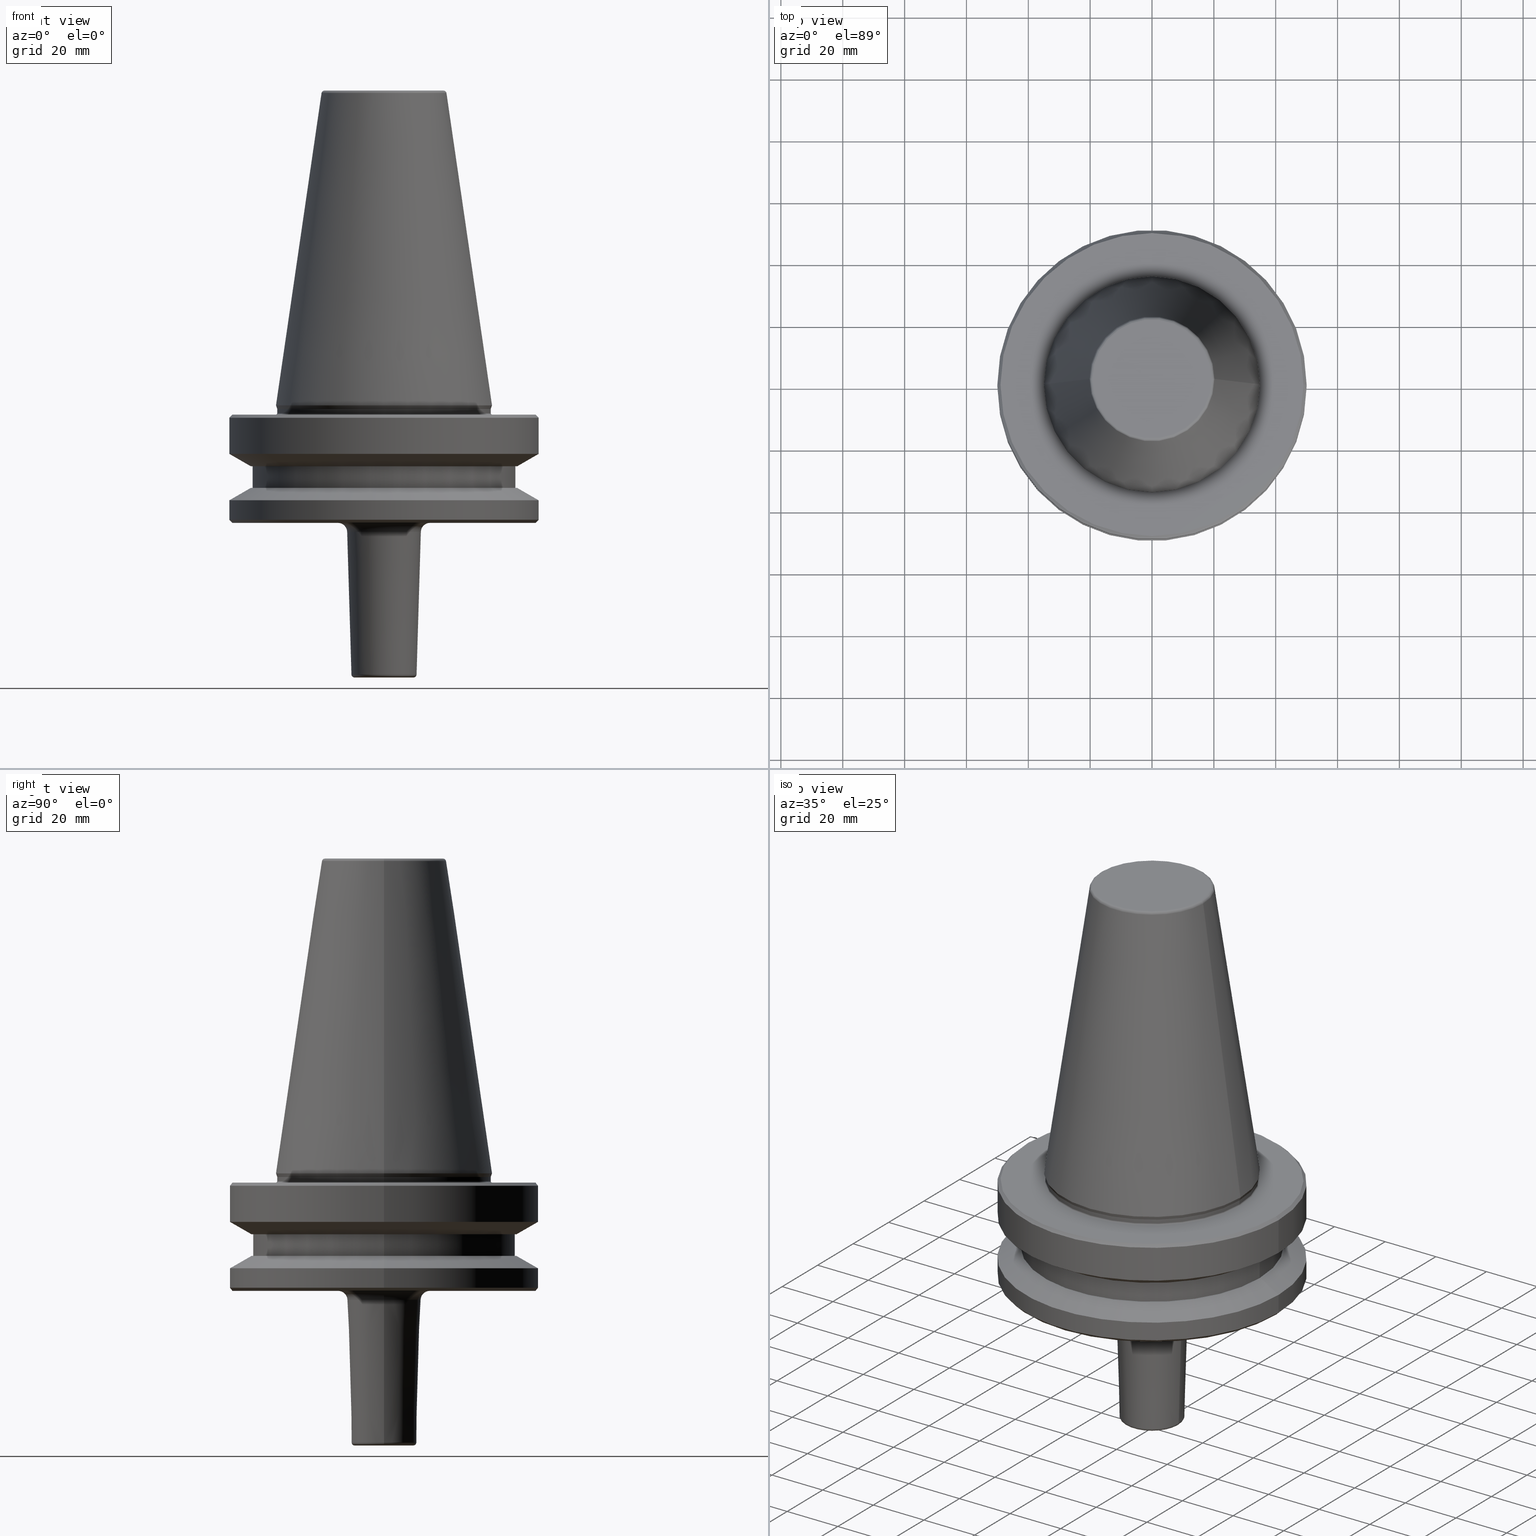
[diagram: canonical four-view strip — front | top / right | iso, engineering-drawing reading convention]
A machine part, canonical four-view strip (front | top / right | iso — engineering-drawing reading convention). The complete STEP part file that produces these views, byte-faithful:
ISO-10303-21;
HEADER;
FILE_DESCRIPTION (( 'STEP AP203' ),
    '1' );
FILE_NAME ('BT50 MCA12 050 AD+B-2.5G 25000 SL.STEP',
    '2019-05-24T10:54:41',
    ( '' ),
    ( '' ),
    'SwSTEP 2.0',
    'SolidWorks 2014',
    '' );
FILE_SCHEMA (( 'CONFIG_CONTROL_DESIGN' ));
ENDSEC;

DATA;
#1 = PRODUCT_DEFINITION ( 'UNKNOWN', '', #960, #82 ) ;
#2 = EDGE_LOOP ( 'NONE', ( #115, #590 ) ) ;
#3 = CARTESIAN_POINT ( 'NONE',  ( -50.00000000000000000, 0.0000000000000000000, -3.999999999999989800 ) ) ;
#4 = DIRECTION ( 'NONE',  ( -0.0000000000000000000, -0.0000000000000000000, 1.000000000000000000 ) ) ;
#5 = DIRECTION ( 'NONE',  ( -0.7071067811865474600, 8.659560562354931600E-017, 0.7071067811865475700 ) ) ;
#6 =( NAMED_UNIT ( * ) PLANE_ANGLE_UNIT ( ) SI_UNIT ( $, .RADIAN. ) );
#7 = APPROVAL_ROLE ( '' ) ;
#8 = TOROIDAL_SURFACE ( 'NONE', #945, 35.00000000000000000, 0.5000000000000004400 ) ;
#9 = CONICAL_SURFACE ( 'NONE', #165, 34.92499999999999700, 0.1448138465474120600 ) ;
#10 = DIRECTION ( 'NONE',  ( 1.000000000000000000, 0.0000000000000000000, 0.0000000000000000000 ) ) ;
#11 = ORIENTED_EDGE ( 'NONE', *, *, #557, .F. ) ;
#12 = ORIENTED_EDGE ( 'NONE', *, *, #382, .F. ) ;
#13 = CYLINDRICAL_SURFACE ( 'NONE', #603, 50.00000000000000000 ) ;
#14 = ORIENTED_EDGE ( 'NONE', *, *, #977, .F. ) ;
#15 = CIRCLE ( 'NONE', #494, 1.000000000000000900 ) ;
#16 = EDGE_CURVE ( 'NONE', #298, #948, #795, .T. ) ;
#17 = VERTEX_POINT ( 'NONE', #765 ) ;
#18 = DIRECTION ( 'NONE',  ( 1.224646799147353200E-016, 1.000000000000000000, 0.0000000000000000000 ) ) ;
#19 = VECTOR ( 'NONE', #320, 1000.000000000000000 ) ;
#20 = PERSON_AND_ORGANIZATION ( #307, #232 ) ;
#21 = EDGE_LOOP ( 'NONE', ( #1003, #849, #513, #714 ) ) ;
#22 = ORIENTED_EDGE ( 'NONE', *, *, #694, .T. ) ;
#23 = EDGE_CURVE ( 'NONE', #17, #220, #521, .T. ) ;
#24 = AXIS2_PLACEMENT_3D ( 'NONE', #832, #978, #117 ) ;
#25 = ORIENTED_EDGE ( 'NONE', *, *, #896, .T. ) ;
#26 = CARTESIAN_POINT ( 'NONE',  ( -50.00000000000000000, 6.123233995736766100E-015, -3.999999999999989800 ) ) ;
#27 = LINE ( 'NONE', #349, #595 ) ;
#28 = DIRECTION ( 'NONE',  ( 0.0000000000000000000, 0.0000000000000000000, -1.000000000000000000 ) ) ;
#29 = CIRCLE ( 'NONE', #610, 35.00000000000000000 ) ;
#30 = EDGE_CURVE ( 'NONE', #786, #268, #917, .T. ) ;
#31 = EDGE_LOOP ( 'NONE', ( #589, #633, #818, #452 ) ) ;
#32 = VERTEX_POINT ( 'NONE', #195 ) ;
#33 = ORIENTED_EDGE ( 'NONE', *, *, #831, .T. ) ;
#34 = DIRECTION ( 'NONE',  ( 1.000000000000000000, 0.0000000000000000000, 0.0000000000000000000 ) ) ;
#35 = CC_DESIGN_APPROVAL ( #140, ( #960 ) ) ;
#36 = EDGE_CURVE ( 'NONE', #342, #220, #732, .T. ) ;
#37 = DIRECTION ( 'NONE',  ( 1.000000000000000000, 0.0000000000000000000, 0.0000000000000000000 ) ) ;
#38 = VERTEX_POINT ( 'NONE', #215 ) ;
#39 = DIRECTION ( 'NONE',  ( -0.8660254037844388200, 1.060575238724907200E-016, 0.4999999999999997200 ) ) ;
#40 = DIRECTION ( 'NONE',  ( 1.000000000000000000, 0.0000000000000000000, 0.0000000000000000000 ) ) ;
#41 = CARTESIAN_POINT ( 'NONE',  ( -34.50000000000000000, 4.225031457058368900E-015, 124.5046326327850600 ) ) ;
#42 = ORIENTED_EDGE ( 'NONE', *, *, #522, .T. ) ;
#43 = AXIS2_PLACEMENT_3D ( 'NONE', #938, #244, #799 ) ;
#44 = CARTESIAN_POINT ( 'NONE',  ( 0.0000000000000000000, 0.0000000000000000000, -37.00000000000002100 ) ) ;
#45 = CARTESIAN_POINT ( 'NONE',  ( 0.0000000000000000000, 0.0000000000000000000, 100.7999999999999800 ) ) ;
#46 = ADVANCED_FACE ( 'NONE', ( #407 ), #48, .F. ) ;
#47 = CARTESIAN_POINT ( 'NONE',  ( -50.00000000000000000, 6.123233995736766100E-015, -37.00000000000002100 ) ) ;
#48 = PLANE ( 'NONE',  #258 ) ;
#49 = TOROIDAL_SURFACE ( 'NONE', #992, 9.529550101204513600, 1.000000000000000400 ) ;
#50 = AXIS2_PLACEMENT_3D ( 'NONE', #178, #736, #259 ) ;
#51 = EDGE_LOOP ( 'NONE', ( #950, #237, #276, #78 ) ) ;
#52 = ORIENTED_EDGE ( 'NONE', *, *, #761, .T. ) ;
#53 = LINE ( 'NONE', #454, #652 ) ;
#54 = DIRECTION ( 'NONE',  ( -0.0000000000000000000, -0.0000000000000000000, 1.000000000000000000 ) ) ;
#55 = ORIENTED_EDGE ( 'NONE', *, *, #857, .F. ) ;
#56 = ADVANCED_FACE ( 'NONE', ( #110, #193 ), #269, .F. ) ;
#57 = EDGE_CURVE ( 'NONE', #853, #762, #567, .T. ) ;
#58 = CARTESIAN_POINT ( 'NONE',  ( -42.50000000000000000, 5.204748896376250900E-015, -19.70000000000001000 ) ) ;
#59 = ADVANCED_FACE ( 'NONE', ( #379 ), #540, .T. ) ;
#60 = CIRCLE ( 'NONE', #124, 34.50000000000000000 ) ;
#61 = CONICAL_SURFACE ( 'NONE', #602, 43.07217782649103600, 1.047197551196598100 ) ;
#62 = FACE_OUTER_BOUND ( 'NONE', #256, .T. ) ;
#63 = CARTESIAN_POINT ( 'NONE',  ( 50.00000000000000000, 6.123233995736766100E-015, -30.69977999677324500 ) ) ;
#64 = AXIS2_PLACEMENT_3D ( 'NONE', #453, #985, #539 ) ;
#65 = DIRECTION ( 'NONE',  ( -1.000000000000000000, 0.0000000000000000000, 0.0000000000000000000 ) ) ;
#66 = ORIENTED_EDGE ( 'NONE', *, *, #30, .F. ) ;
#67 = CARTESIAN_POINT ( 'NONE',  ( 0.0000000000000000000, 0.0000000000000000000, 100.7999999999999800 ) ) ;
#68 = CARTESIAN_POINT ( 'NONE',  ( 35.00000000000000000, 0.0000000000000000000, -2.500000000000002200 ) ) ;
#69 = ORIENTED_EDGE ( 'NONE', *, *, #169, .T. ) ;
#70 = CARTESIAN_POINT ( 'NONE',  ( 0.0000000000000000000, 0.0000000000000000000, -87.02998650910571100 ) ) ;
#71 = EDGE_CURVE ( 'NONE', #740, #38, #933, .T. ) ;
#72 = CARTESIAN_POINT ( 'NONE',  ( 9.529550101204513600, 0.0000000000000000000, -87.00000000000002800 ) ) ;
#73 = CARTESIAN_POINT ( 'NONE',  ( 0.0000000000000000000, 0.0000000000000000000, -2.500000000000002200 ) ) ;
#74 = CALENDAR_DATE ( 2019, 24, 5 ) ;
#75 = AXIS2_PLACEMENT_3D ( 'NONE', #861, #396, #928 ) ;
#76 = CIRCLE ( 'NONE', #862, 14.91134969638665100 ) ;
#77 = EDGE_CURVE ( 'NONE', #710, #964, #908, .T. ) ;
#78 = ORIENTED_EDGE ( 'NONE', *, *, #250, .F. ) ;
#79 = CC_DESIGN_PERSON_AND_ORGANIZATION_ASSIGNMENT ( #345, #729, ( #960 ) ) ;
#80 = PLANE ( 'NONE',  #705 ) ;
#81 = VERTEX_POINT ( 'NONE', #281 ) ;
#82 = DESIGN_CONTEXT ( 'detailed design', #405, 'design' ) ;
#83 = DATE_TIME_ROLE ( 'creation_date' ) ;
#84 = DIRECTION ( 'NONE',  ( 1.000000000000000000, 0.0000000000000000000, 0.0000000000000000000 ) ) ;
#85 = AXIS2_PLACEMENT_3D ( 'NONE', #646, #162, #241 ) ;
#86 = DIRECTION ( 'NONE',  ( -0.0000000000000000000, -0.0000000000000000000, 1.000000000000000000 ) ) ;
#87 = TOROIDAL_SURFACE ( 'NONE', #665, 19.21428326503027200, 0.9999999999999983300 ) ;
#88 = AXIS2_PLACEMENT_3D ( 'NONE', #967, #516, #28 ) ;
#89 = FACE_BOUND ( 'NONE', #287, .T. ) ;
#90 = CONICAL_SURFACE ( 'NONE', #99, 50.00000000000000000, 1.047197551196597200 ) ;
#91 = FACE_OUTER_BOUND ( 'NONE', #974, .T. ) ;
#92 = DIRECTION ( 'NONE',  ( 1.000000000000000000, 0.0000000000000000000, 0.0000000000000000000 ) ) ;
#93 = ORIENTED_EDGE ( 'NONE', *, *, #239, .F. ) ;
#94 = AXIS2_PLACEMENT_3D ( 'NONE', #73, #487, #10 ) ;
#95 = AXIS2_PLACEMENT_3D ( 'NONE', #184, #743, #266 ) ;
#96 = CARTESIAN_POINT ( 'NONE',  ( 0.0000000000000000000, 42.50000000000000000, -26.70000000000000300 ) ) ;
#97 = CARTESIAN_POINT ( 'NONE',  ( 0.0000000000000000000, 0.0000000000000000000, -88.00000000000002800 ) ) ;
#98 = DIRECTION ( 'NONE',  ( 1.000000000000000000, 0.0000000000000000000, 0.0000000000000000000 ) ) ;
#99 = AXIS2_PLACEMENT_3D ( 'NONE', #477, #924, #788 ) ;
#100 = DATE_AND_TIME ( #322, #536 ) ;
#101 = DIRECTION ( 'NONE',  ( -0.0000000000000000000, -0.0000000000000000000, 1.000000000000000000 ) ) ;
#102 = CIRCLE ( 'NONE', #427, 50.00000000000000000 ) ;
#103 = LINE ( 'NONE', #605, #723 ) ;
#104 = ORIENTED_EDGE ( 'NONE', *, *, #457, .F. ) ;
#105 = EDGE_CURVE ( 'NONE', #32, #893, #962, .T. ) ;
#106 = ORIENTED_EDGE ( 'NONE', *, *, #457, .T. ) ;
#107 = CARTESIAN_POINT ( 'NONE',  ( -34.92499999999999700, 0.0000000000000000000, 0.0000000000000000000 ) ) ;
#108 = EDGE_LOOP ( 'NONE', ( #93, #641, #198, #809 ) ) ;
#109 = FACE_OUTER_BOUND ( 'NONE', #31, .T. ) ;
#110 = FACE_BOUND ( 'NONE', #971, .T. ) ;
#111 = ADVANCED_FACE ( 'NONE', ( #770 ), #586, .T. ) ;
#112 = CARTESIAN_POINT ( 'NONE',  ( 50.00000000000000000, 0.0000000000000000000, -30.69977999677324500 ) ) ;
#113 = FACE_OUTER_BOUND ( 'NONE', #773, .T. ) ;
#114 = CONICAL_SURFACE ( 'NONE', #474, 50.00000000000000000, 0.7853981633974482800 ) ;
#115 = ORIENTED_EDGE ( 'NONE', *, *, #797, .F. ) ;
#116 = AXIS2_PLACEMENT_3D ( 'NONE', #859, #709, #318 ) ;
#117 = DIRECTION ( 'NONE',  ( 1.000000000000000000, 0.0000000000000000000, 0.0000000000000000000 ) ) ;
#118 = CARTESIAN_POINT ( 'NONE',  ( 10.52910040472687900, 0.0000000000000000000, -87.02998650910571100 ) ) ;
#119 = AXIS2_PLACEMENT_3D ( 'NONE', #206, #766, #289 ) ;
#120 = ORIENTED_EDGE ( 'NONE', *, *, #797, .T. ) ;
#121 = CARTESIAN_POINT ( 'NONE',  ( 35.00000000000000000, 0.0000000000000000000, -2.999999999999995600 ) ) ;
#122 = PERSON_AND_ORGANIZATION ( #307, #232 ) ;
#123 = DIRECTION ( 'NONE',  ( 1.000000000000000000, 0.0000000000000000000, 0.0000000000000000000 ) ) ;
#124 = AXIS2_PLACEMENT_3D ( 'NONE', #764, #224, #980 ) ;
#125 = LINE ( 'NONE', #678, #351 ) ;
#126 = CARTESIAN_POINT ( 'NONE',  ( -50.00000000000000000, 6.123233995736766100E-015, -30.69977999677324500 ) ) ;
#127 = ORIENTED_EDGE ( 'NONE', *, *, #390, .T. ) ;
#128 = ORIENTED_EDGE ( 'NONE', *, *, #271, .F. ) ;
#129 = ORIENTED_EDGE ( 'NONE', *, *, #527, .T. ) ;
#130 = DIRECTION ( 'NONE',  ( 0.0000000000000000000, -0.0000000000000000000, 1.000000000000000000 ) ) ;
#131 = CARTESIAN_POINT ( 'NONE',  ( 0.0000000000000000000, 0.0000000000000000000, -15.70022000322675400 ) ) ;
#132 = DIRECTION ( 'NONE',  ( 0.0000000000000000000, 0.0000000000000000000, -1.000000000000000000 ) ) ;
#133 = EDGE_CURVE ( 'NONE', #871, #750, #746, .T. ) ;
#134 = AXIS2_PLACEMENT_3D ( 'NONE', #721, #482, #326 ) ;
#135 = EDGE_CURVE ( 'NONE', #622, #852, #158, .T. ) ;
#136 = DIRECTION ( 'NONE',  ( 0.7071067811865474600, 0.0000000000000000000, 0.7071067811865475700 ) ) ;
#137 = DIRECTION ( 'NONE',  ( -0.0000000000000000000, -0.0000000000000000000, 1.000000000000000000 ) ) ;
#138 = SECURITY_CLASSIFICATION ( '', '', #800 ) ;
#139 = FACE_OUTER_BOUND ( 'NONE', #891, .T. ) ;
#140 = APPROVAL ( #650, 'UNSPECIFIED' ) ;
#141 = VERTEX_POINT ( 'NONE', #47 ) ;
#142 = CARTESIAN_POINT ( 'NONE',  ( -34.50000000000000000, 4.255647627037052700E-015, -2.499999999999988500 ) ) ;
#143 = VERTEX_POINT ( 'NONE', #421 ) ;
#144 = DIRECTION ( 'NONE',  ( -0.0000000000000000000, -0.0000000000000000000, 1.000000000000000000 ) ) ;
#145 = CC_DESIGN_APPROVAL ( #940, ( #138 ) ) ;
#146 = DIRECTION ( 'NONE',  ( 1.000000000000000000, 0.0000000000000000000, 0.0000000000000000000 ) ) ;
#147 = AXIS2_PLACEMENT_3D ( 'NONE', #685, #130, #798 ) ;
#148 = VERTEX_POINT ( 'NONE', #118 ) ;
#149 = EDGE_LOOP ( 'NONE', ( #726, #921 ) ) ;
#150 = AXIS2_PLACEMENT_3D ( 'NONE', #272, #822, #357 ) ;
#151 = CARTESIAN_POINT ( 'NONE',  ( 12.00000000000003900, 0.0000000000000000000, -38.00000000000000700 ) ) ;
#152 = LOCAL_TIME ( 16, 24, 41.00000000000000000, #367 ) ;
#153 = CARTESIAN_POINT ( 'NONE',  ( 0.0000000000000000000, 0.0000000000000000000, -26.69999999999998900 ) ) ;
#154 = DIRECTION ( 'NONE',  ( 1.000000000000000000, 0.0000000000000000000, 0.0000000000000000000 ) ) ;
#155 = EDGE_CURVE ( 'NONE', #644, #148, #370, .T. ) ;
#156 = APPROVAL_PERSON_ORGANIZATION ( #833, #593, #7 ) ;
#157 = DIRECTION ( 'NONE',  ( 0.0000000000000000000, 0.0000000000000000000, -1.000000000000000000 ) ) ;
#158 = CIRCLE ( 'NONE', #708, 42.50000000000000000 ) ;
#159 = VECTOR ( 'NONE', #39, 1000.000000000000000 ) ;
#160 = AXIS2_PLACEMENT_3D ( 'NONE', #491, #18, #687 ) ;
#161 = EDGE_LOOP ( 'NONE', ( #42, #700, #385, #248 ) ) ;
#162 = DIRECTION ( 'NONE',  ( -0.0000000000000000000, -0.0000000000000000000, 1.000000000000000000 ) ) ;
#163 = DIRECTION ( 'NONE',  ( -1.000000000000000000, 0.0000000000000000000, -0.0000000000000000000 ) ) ;
#164 = CC_DESIGN_SECURITY_CLASSIFICATION ( #138, ( #960 ) ) ;
#165 = AXIS2_PLACEMENT_3D ( 'NONE', #372, #842, #373 ) ;
#166 = FACE_OUTER_BOUND ( 'NONE', #267, .T. ) ;
#167 = AXIS2_PLACEMENT_3D ( 'NONE', #972, #523, #37 ) ;
#168 = ADVANCED_FACE ( 'NONE', ( #350 ), #369, .T. ) ;
#169 = EDGE_CURVE ( 'NONE', #38, #555, #102, .T. ) ;
#170 = APPROVAL_ROLE ( '' ) ;
#171 = DIRECTION ( 'NONE',  ( 0.0000000000000000000, -1.000000000000000000, 0.0000000000000000000 ) ) ;
#172 = CONICAL_SURFACE ( 'NONE', #261, 43.07217782649103600, 1.047197551196598100 ) ;
#173 = ORIENTED_EDGE ( 'NONE', *, *, #975, .F. ) ;
#174 = EDGE_LOOP ( 'NONE', ( #128, #912, #599, #120 ) ) ;
#175 = EDGE_CURVE ( 'NONE', #519, #915, #310, .T. ) ;
#176 = CARTESIAN_POINT ( 'NONE',  ( 0.0000000000000000000, 0.0000000000000000000, -30.69977999677324500 ) ) ;
#177 = EDGE_LOOP ( 'NONE', ( #55, #955, #69, #840 ) ) ;
#178 = CARTESIAN_POINT ( 'NONE',  ( 0.0000000000000000000, 0.0000000000000000000, -30.69977999677324500 ) ) ;
#179 = AXIS2_PLACEMENT_3D ( 'NONE', #72, #643, #157 ) ;
#180 = ORIENTED_EDGE ( 'NONE', *, *, #658, .T. ) ;
#181 = CALENDAR_DATE ( 2019, 24, 5 ) ;
#182 = DIRECTION ( 'NONE',  ( 1.000000000000000000, 0.0000000000000000000, 0.0000000000000000000 ) ) ;
#183 = DIRECTION ( 'NONE',  ( -0.0000000000000000000, -0.0000000000000000000, 1.000000000000000000 ) ) ;
#184 = CARTESIAN_POINT ( 'NONE',  ( 0.0000000000000000000, 0.0000000000000000000, -19.70000000000001000 ) ) ;
#185 = AXIS2_PLACEMENT_3D ( 'NONE', #779, #308, #851 ) ;
#186 = EDGE_LOOP ( 'NONE', ( #817, #392, #412, #529 ) ) ;
#187 = ORIENTED_EDGE ( 'NONE', *, *, #233, .F. ) ;
#188 = DIRECTION ( 'NONE',  ( -0.0000000000000000000, -0.0000000000000000000, 1.000000000000000000 ) ) ;
#189 = ADVANCED_FACE ( 'NONE', ( #395, #89 ), #441, .F. ) ;
#190 = DIRECTION ( 'NONE',  ( 1.000000000000000000, 0.0000000000000000000, 0.0000000000000000000 ) ) ;
#191 = AXIS2_PLACEMENT_3D ( 'NONE', #431, #883, #587 ) ;
#192 = DIRECTION ( 'NONE',  ( -0.0000000000000000000, -0.0000000000000000000, 1.000000000000000000 ) ) ;
#193 = FACE_OUTER_BOUND ( 'NONE', #149, .T. ) ;
#194 = CYLINDRICAL_SURFACE ( 'NONE', #703, 42.50000000000000000 ) ;
#195 = CARTESIAN_POINT ( 'NONE',  ( 42.50000000000000000, 0.0000000000000000000, -26.69999999999998900 ) ) ;
#196 = ORIENTED_EDGE ( 'NONE', *, *, #250, .T. ) ;
#197 = DIRECTION ( 'NONE',  ( 1.224646799147353200E-016, 1.000000000000000000, 0.0000000000000000000 ) ) ;
#198 = ORIENTED_EDGE ( 'NONE', *, *, #574, .T. ) ;
#199 = CIRCLE ( 'NONE', #611, 43.07217782649105000 ) ;
#200 = ORIENTED_EDGE ( 'NONE', *, *, #571, .T. ) ;
#201 = CARTESIAN_POINT ( 'NONE',  ( -10.52910040472687900, 1.289442910854987100E-015, -87.02998650910571100 ) ) ;
#202 = DATE_AND_TIME ( #422, #634 ) ;
#203 = AXIS2_PLACEMENT_3D ( 'NONE', #671, #192, #751 ) ;
#204 = EDGE_CURVE ( 'NONE', #750, #871, #472, .T. ) ;
#205 = FACE_OUTER_BOUND ( 'NONE', #177, .T. ) ;
#206 = CARTESIAN_POINT ( 'NONE',  ( 0.0000000000000000000, 0.0000000000000000000, -1.167677903268202300 ) ) ;
#207 = ORIENTED_EDGE ( 'NONE', *, *, #720, .F. ) ;
#208 = DIRECTION ( 'NONE',  ( 1.000000000000000000, 0.0000000000000000000, 0.0000000000000000000 ) ) ;
#209 = ORIENTED_EDGE ( 'NONE', *, *, #247, .T. ) ;
#210 = DIRECTION ( 'NONE',  ( -0.0000000000000000000, -0.0000000000000000000, 1.000000000000000000 ) ) ;
#211 = AXIS2_PLACEMENT_3D ( 'NONE', #481, #864, #931 ) ;
#212 = AXIS2_PLACEMENT_3D ( 'NONE', #70, #717, #642 ) ;
#213 = COORDINATED_UNIVERSAL_TIME_OFFSET ( 5, 30, .AHEAD. ) ;
#214 = DIRECTION ( 'NONE',  ( -0.0000000000000000000, -0.0000000000000000000, 1.000000000000000000 ) ) ;
#215 = CARTESIAN_POINT ( 'NONE',  ( 50.00000000000000000, 0.0000000000000000000, -3.999999999999989800 ) ) ;
#216 = CARTESIAN_POINT ( 'NONE',  ( 0.0000000000000000000, 0.0000000000000000000, -30.69977999677324500 ) ) ;
#217 = DIRECTION ( 'NONE',  ( 1.000000000000000000, 0.0000000000000000000, 0.0000000000000000000 ) ) ;
#218 = CARTESIAN_POINT ( 'NONE',  ( -9.529550101204513600, 1.167033302875444300E-015, -87.00000000000002800 ) ) ;
#219 = CIRCLE ( 'NONE', #664, 50.00000000000000000 ) ;
#220 = VERTEX_POINT ( 'NONE', #785 ) ;
#221 = ORIENTED_EDGE ( 'NONE', *, *, #914, .T. ) ;
#222 = ORIENTED_EDGE ( 'NONE', *, *, #535, .F. ) ;
#223 = CARTESIAN_POINT ( 'NONE',  ( -43.07217782649105000, 0.0000000000000000000, -26.69999999999998900 ) ) ;
#224 = DIRECTION ( 'NONE',  ( -0.0000000000000000000, -0.0000000000000000000, 1.000000000000000000 ) ) ;
#225 = CONICAL_SURFACE ( 'NONE', #763, 49.00000000000000000, 0.7853981633974482800 ) ;
#226 = AXIS2_PLACEMENT_3D ( 'NONE', #926, #476, #1002 ) ;
#227 = EDGE_CURVE ( 'NONE', #762, #853, #681, .T. ) ;
#228 = DIRECTION ( 'NONE',  ( 0.0000000000000000000, 0.0000000000000000000, -1.000000000000000000 ) ) ;
#229 = PLANE ( 'NONE',  #147 ) ;
#230 = CARTESIAN_POINT ( 'NONE',  ( 0.0000000000000000000, 0.0000000000000000000, -38.00000000000000700 ) ) ;
#231 = CARTESIAN_POINT ( 'NONE',  ( -42.50000000000000000, 5.204748896376250900E-015, -26.69999999999998900 ) ) ;
#232 = ORGANIZATION ( 'UNSPECIFIED', 'UNSPECIFIED', '' ) ;
#233 = EDGE_CURVE ( 'NONE', #148, #644, #498, .T. ) ;
#234 = DIRECTION ( 'NONE',  ( 1.000000000000000000, 0.0000000000000000000, 0.0000000000000000000 ) ) ;
#235 = ORIENTED_EDGE ( 'NONE', *, *, #571, .F. ) ;
#236 = CARTESIAN_POINT ( 'NONE',  ( 42.50000000000000000, 0.0000000000000000000, 124.5046326327850600 ) ) ;
#237 = ORIENTED_EDGE ( 'NONE', *, *, #535, .T. ) ;
#238 = DIRECTION ( 'NONE',  ( 0.0000000000000000000, 0.0000000000000000000, -1.000000000000000000 ) ) ;
#239 = EDGE_CURVE ( 'NONE', #750, #364, #733, .T. ) ;
#240 = DIRECTION ( 'NONE',  ( -0.0000000000000000000, -0.0000000000000000000, 1.000000000000000000 ) ) ;
#241 = DIRECTION ( 'NONE',  ( 1.000000000000000000, 0.0000000000000000000, 0.0000000000000000000 ) ) ;
#242 = DIRECTION ( 'NONE',  ( 0.0000000000000000000, 0.0000000000000000000, -1.000000000000000000 ) ) ;
#243 = AXIS2_PLACEMENT_3D ( 'NONE', #153, #713, #234 ) ;
#244 = DIRECTION ( 'NONE',  ( 0.0000000000000000000, 0.0000000000000000000, 1.000000000000000000 ) ) ;
#245 = TOROIDAL_SURFACE ( 'NONE', #191, 14.91134969638665100, 3.000000000000000000 ) ;
#246 = VECTOR ( 'NONE', #297, 1000.000000000000000 ) ;
#247 = EDGE_CURVE ( 'NONE', #964, #710, #449, .T. ) ;
#248 = ORIENTED_EDGE ( 'NONE', *, *, #23, .F. ) ;
#249 = ORIENTED_EDGE ( 'NONE', *, *, #16, .F. ) ;
#250 = EDGE_CURVE ( 'NONE', #32, #622, #584, .T. ) ;
#251 = LINE ( 'NONE', #278, #371 ) ;
#252 = ORIENTED_EDGE ( 'NONE', *, *, #135, .T. ) ;
#253 = DIRECTION ( 'NONE',  ( -0.0000000000000000000, -0.0000000000000000000, 1.000000000000000000 ) ) ;
#254 = PERSON_AND_ORGANIZATION_ROLE ( 'design_supplier' ) ;
#255 = DIRECTION ( 'NONE',  ( 0.0000000000000000000, -0.0000000000000000000, 1.000000000000000000 ) ) ;
#256 = EDGE_LOOP ( 'NONE', ( #956, #235, #725, #221 ) ) ;
#257 = CC_DESIGN_DATE_AND_TIME_ASSIGNMENT ( #979, #83, ( #1 ) ) ;
#258 = AXIS2_PLACEMENT_3D ( 'NONE', #262, #132, #906 ) ;
#259 = DIRECTION ( 'NONE',  ( 1.000000000000000000, 0.0000000000000000000, 0.0000000000000000000 ) ) ;
#260 = VECTOR ( 'NONE', #401, 1000.000000000000000 ) ;
#261 = AXIS2_PLACEMENT_3D ( 'NONE', #776, #137, #848 ) ;
#262 = CARTESIAN_POINT ( 'NONE',  ( 0.0000000000000000000, 0.0000000000000000000, 101.8000000000000000 ) ) ;
#263 = DIRECTION ( 'NONE',  ( 0.0000000000000000000, 0.0000000000000000000, -1.000000000000000000 ) ) ;
#264 = ORIENTED_EDGE ( 'NONE', *, *, #583, .T. ) ;
#265 = CARTESIAN_POINT ( 'NONE',  ( 0.0000000000000000000, 0.0000000000000000000, -2.499999999999988500 ) ) ;
#266 = DIRECTION ( 'NONE',  ( 1.000000000000000000, 0.0000000000000000000, 0.0000000000000000000 ) ) ;
#267 = EDGE_LOOP ( 'NONE', ( #873, #391, #339, #882 ) ) ;
#268 = VERTEX_POINT ( 'NONE', #794 ) ;
#269 = PLANE ( 'NONE',  #930 ) ;
#270 = CARTESIAN_POINT ( 'NONE',  ( 0.0000000000000000000, 0.0000000000000000000, 124.5046326327850600 ) ) ;
#271 = EDGE_CURVE ( 'NONE', #853, #81, #284, .T. ) ;
#272 = CARTESIAN_POINT ( 'NONE',  ( 0.0000000000000000000, 0.0000000000000000000, -1.167677903268202300 ) ) ;
#273 = CONICAL_SURFACE ( 'NONE', #24, 12.00000000000003900, 0.02999100485687768500 ) ;
#274 = CC_DESIGN_PERSON_AND_ORGANIZATION_ASSIGNMENT ( #927, #331, ( #138 ) ) ;
#275 = ORIENTED_EDGE ( 'NONE', *, *, #247, .F. ) ;
#276 = ORIENTED_EDGE ( 'NONE', *, *, #135, .F. ) ;
#277 = ORIENTED_EDGE ( 'NONE', *, *, #293, .T. ) ;
#278 = CARTESIAN_POINT ( 'NONE',  ( -50.00000000000000000, 6.123233995736766100E-015, 124.5046326327850600 ) ) ;
#279 = DIRECTION ( 'NONE',  ( 0.8660254037844388200, 0.0000000000000000000, 0.4999999999999997200 ) ) ;
#280 = EDGE_CURVE ( 'NONE', #991, #555, #706, .T. ) ;
#281 = CARTESIAN_POINT ( 'NONE',  ( -35.00000000000000000, 4.286263797015737300E-015, -2.999999999999995600 ) ) ;
#282 = DIRECTION ( 'NONE',  ( -0.0000000000000000000, -0.0000000000000000000, 1.000000000000000000 ) ) ;
#283 = ADVANCED_FACE ( 'NONE', ( #205 ), #518, .T. ) ;
#284 = CIRCLE ( 'NONE', #160, 0.5000000000000004400 ) ;
#285 = TOROIDAL_SURFACE ( 'NONE', #94, 35.00000000000000000, 0.5000000000000004400 ) ;
#286 = DIRECTION ( 'NONE',  ( 1.000000000000000000, 0.0000000000000000000, 0.0000000000000000000 ) ) ;
#287 = EDGE_LOOP ( 'NONE', ( #252, #514 ) ) ;
#288 = AXIS2_PLACEMENT_3D ( 'NONE', #702, #228, #784 ) ;
#289 = DIRECTION ( 'NONE',  ( 1.000000000000000000, 0.0000000000000000000, 0.0000000000000000000 ) ) ;
#290 = VERTEX_POINT ( 'NONE', #949 ) ;
#291 = LOCAL_TIME ( 16, 24, 41.00000000000000000, #506 ) ;
#292 = ADVANCED_FACE ( 'NONE', ( #376, #919 ), #229, .F. ) ;
#293 = EDGE_CURVE ( 'NONE', #688, #826, #60, .T. ) ;
#294 = FACE_OUTER_BOUND ( 'NONE', #186, .T. ) ;
#295 = ORIENTED_EDGE ( 'NONE', *, *, #57, .T. ) ;
#296 = EDGE_LOOP ( 'NONE', ( #387, #438, #696, #674 ) ) ;
#297 = DIRECTION ( 'NONE',  ( -0.0000000000000000000, -0.0000000000000000000, 1.000000000000000000 ) ) ;
#298 = VERTEX_POINT ( 'NONE', #738 ) ;
#299 = ADVANCED_FACE ( 'NONE', ( #425 ), #609, .F. ) ;
#300 = AXIS2_PLACEMENT_3D ( 'NONE', #876, #330, #242 ) ;
#301 = AXIS2_PLACEMENT_3D ( 'NONE', #807, #255, #40 ) ;
#302 = DIRECTION ( 'NONE',  ( -0.0000000000000000000, -0.0000000000000000000, 1.000000000000000000 ) ) ;
#303 = EDGE_LOOP ( 'NONE', ( #200, #374 ) ) ;
#304 = ADVANCED_FACE ( 'NONE', ( #109 ), #446, .T. ) ;
#305 = CYLINDRICAL_SURFACE ( 'NONE', #388, 42.50000000000000000 ) ;
#306 = EDGE_CURVE ( 'NONE', #290, #841, #775, .T. ) ;
#307 = PERSON ( 'UNSPECIFIED', 'UNSPECIFIED', 'UNSPECIFIED', ('UNSPECIFIED'), ('UNSPECIFIED'), ('UNSPECIFIED') ) ;
#308 = DIRECTION ( 'NONE',  ( -0.0000000000000000000, -0.0000000000000000000, 1.000000000000000000 ) ) ;
#309 = CARTESIAN_POINT ( 'NONE',  ( 0.0000000000000000000, 0.0000000000000000000, -40.91004047268298600 ) ) ;
#310 = CIRCLE ( 'NONE', #408, 9.529550101204513600 ) ;
#311 = LINE ( 'NONE', #323, #526 ) ;
#312 = FACE_OUTER_BOUND ( 'NONE', #174, .T. ) ;
#313 = CARTESIAN_POINT ( 'NONE',  ( 0.0000000000000000000, 0.0000000000000000000, -19.70000000000001000 ) ) ;
#314 = DIRECTION ( 'NONE',  ( 0.0000000000000000000, 0.0000000000000000000, -1.000000000000000000 ) ) ;
#315 = EDGE_CURVE ( 'NONE', #613, #748, #548, .T. ) ;
#316 = ORIENTED_EDGE ( 'NONE', *, *, #315, .F. ) ;
#317 = DIRECTION ( 'NONE',  ( 0.02998650910567078600, 0.0000000000000000000, 0.9995503035223667300 ) ) ;
#318 = DIRECTION ( 'NONE',  ( 1.000000000000000000, 0.0000000000000000000, 0.0000000000000000000 ) ) ;
#319 = EDGE_CURVE ( 'NONE', #986, #141, #730, .T. ) ;
#320 = DIRECTION ( 'NONE',  ( 0.1443082272673000800, 1.767266086135278300E-017, -0.9895327864921754600 ) ) ;
#321 = CARTESIAN_POINT ( 'NONE',  ( 14.91134969638665100, 0.0000000000000000000, -38.00000000000000700 ) ) ;
#322 = CALENDAR_DATE ( 2019, 24, 5 ) ;
#323 = CARTESIAN_POINT ( 'NONE',  ( -12.00000000000003900, 1.469576158976828500E-015, -38.00000000000000700 ) ) ;
#324 = FACE_OUTER_BOUND ( 'NONE', #829, .T. ) ;
#325 = VECTOR ( 'NONE', #448, 1000.000000000000000 ) ;
#326 = DIRECTION ( 'NONE',  ( -1.000000000000000000, 0.0000000000000000000, 0.0000000000000000000 ) ) ;
#327 = CARTESIAN_POINT ( 'NONE',  ( -49.00000000000000000, 6.062001655779398500E-015, -38.00000000000002100 ) ) ;
#328 = VERTEX_POINT ( 'NONE', #937 ) ;
#329 = MECHANICAL_CONTEXT ( 'NONE', #728, 'mechanical' ) ;
#330 = DIRECTION ( 'NONE',  ( 0.0000000000000000000, -1.000000000000000000, 0.0000000000000000000 ) ) ;
#331 = PERSON_AND_ORGANIZATION_ROLE ( 'classification_officer' ) ;
#332 = VECTOR ( 'NONE', #279, 1000.000000000000000 ) ;
#333 = ADVANCED_FACE ( 'NONE', ( #585 ), #87, .T. ) ;
#334 = DIRECTION ( 'NONE',  ( 1.000000000000000000, 0.0000000000000000000, 0.0000000000000000000 ) ) ;
#335 = ADVANCED_FACE ( 'NONE', ( #993 ), #13, .T. ) ;
#336 = CARTESIAN_POINT ( 'NONE',  ( 50.00000000000000000, 6.123233995736766100E-015, -3.999999999999989800 ) ) ;
#337 = FACE_OUTER_BOUND ( 'NONE', #296, .T. ) ;
#338 = CIRCLE ( 'NONE', #358, 0.5000000000000004400 ) ;
#339 = ORIENTED_EDGE ( 'NONE', *, *, #375, .T. ) ;
#340 = CARTESIAN_POINT ( 'NONE',  ( -49.00000000000000000, 6.000769315822030900E-015, -38.00000000000002100 ) ) ;
#341 = PLANE ( 'NONE',  #469 ) ;
#342 = VERTEX_POINT ( 'NONE', #875 ) ;
#343 = AXIS2_PLACEMENT_3D ( 'NONE', #719, #707, #84 ) ;
#344 = CARTESIAN_POINT ( 'NONE',  ( 0.0000000000000000000, 0.0000000000000000000, -2.500000000000002200 ) ) ;
#345 = PERSON_AND_ORGANIZATION ( #307, #232 ) ;
#346 = LINE ( 'NONE', #107, #359 ) ;
#347 = ADVANCED_BREP_SHAPE_REPRESENTATION ( 'BT50 MCA12 050 AD+B-2.5G 25000 SL', ( #888, #43 ), #894 ) ;
#348 = VECTOR ( 'NONE', #501, 1000.000000000000000 ) ;
#349 = CARTESIAN_POINT ( 'NONE',  ( -42.50000000000000000, 5.204748896376250900E-015, 124.5046326327850600 ) ) ;
#350 = FACE_OUTER_BOUND ( 'NONE', #462, .T. ) ;
#351 = VECTOR ( 'NONE', #282, 1000.000000000000000 ) ;
#352 = AXIS2_PLACEMENT_3D ( 'NONE', #637, #712, #182 ) ;
#353 = CARTESIAN_POINT ( 'NONE',  ( 0.0000000000000000000, 0.0000000000000000000, -38.00000000000000700 ) ) ;
#354 = CARTESIAN_POINT ( 'NONE',  ( 0.0000000000000000000, 0.0000000000000000000, 124.5046326327850600 ) ) ;
#355 = ORIENTED_EDGE ( 'NONE', *, *, #594, .F. ) ;
#356 = DIRECTION ( 'NONE',  ( 0.0000000000000000000, 0.0000000000000000000, -1.000000000000000000 ) ) ;
#357 = DIRECTION ( 'NONE',  ( 1.000000000000000000, 0.0000000000000000000, 0.0000000000000000000 ) ) ;
#358 = AXIS2_PLACEMENT_3D ( 'NONE', #68, #171, #314 ) ;
#359 = VECTOR ( 'NONE', #591, 1000.000000000000000 ) ;
#360 = ORIENTED_EDGE ( 'NONE', *, *, #836, .T. ) ;
#361 = DIRECTION ( 'NONE',  ( 1.000000000000000000, 0.0000000000000000000, 0.0000000000000000000 ) ) ;
#362 = CIRCLE ( 'NONE', #179, 1.000000000000000900 ) ;
#363 = ORIENTED_EDGE ( 'NONE', *, *, #583, .F. ) ;
#364 = VERTEX_POINT ( 'NONE', #943 ) ;
#365 = DIRECTION ( 'NONE',  ( -0.0000000000000000000, -0.0000000000000000000, 1.000000000000000000 ) ) ;
#366 = CARTESIAN_POINT ( 'NONE',  ( 0.0000000000000000000, 0.0000000000000000000, -38.00000000000002100 ) ) ;
#367 = COORDINATED_UNIVERSAL_TIME_OFFSET ( 5, 30, .AHEAD. ) ;
#368 = CARTESIAN_POINT ( 'NONE',  ( 34.50000000000000000, 0.0000000000000000000, -1.167677903268202300 ) ) ;
#369 = CONICAL_SURFACE ( 'NONE', #456, 34.50000000000000000, 0.3490658503988654500 ) ;
#370 = CIRCLE ( 'NONE', #666, 10.52910040472687700 ) ;
#371 = VECTOR ( 'NONE', #596, 1000.000000000000000 ) ;
#372 = CARTESIAN_POINT ( 'NONE',  ( 0.0000000000000000000, 0.0000000000000000000, 0.0000000000000000000 ) ) ;
#373 = DIRECTION ( 'NONE',  ( -1.000000000000000000, 0.0000000000000000000, 0.0000000000000000000 ) ) ;
#374 = ORIENTED_EDGE ( 'NONE', *, *, #857, .T. ) ;
#375 = EDGE_CURVE ( 'NONE', #429, #440, #53, .T. ) ;
#376 = FACE_BOUND ( 'NONE', #543, .T. ) ;
#377 = CARTESIAN_POINT ( 'NONE',  ( 0.0000000000000000000, 0.0000000000000000000, 124.5046326327850600 ) ) ;
#378 = CARTESIAN_POINT ( 'NONE',  ( 0.0000000000000000000, 0.0000000000000000000, -38.00000000000002100 ) ) ;
#379 = FACE_OUTER_BOUND ( 'NONE', #860, .T. ) ;
#380 = CIRCLE ( 'NONE', #95, 43.07217782649103600 ) ;
#381 = CIRCLE ( 'NONE', #288, 11.91269878581954700 ) ;
#382 = EDGE_CURVE ( 'NONE', #841, #290, #199, .T. ) ;
#383 = ORIENTED_EDGE ( 'NONE', *, *, #36, .T. ) ;
#384 = ADVANCED_FACE ( 'NONE', ( #166 ), #225, .T. ) ;
#385 = ORIENTED_EDGE ( 'NONE', *, *, #761, .F. ) ;
#386 = CARTESIAN_POINT ( 'NONE',  ( 0.0000000000000000000, 0.0000000000000000000, 124.5046326327850600 ) ) ;
#387 = ORIENTED_EDGE ( 'NONE', *, *, #629, .F. ) ;
#388 = AXIS2_PLACEMENT_3D ( 'NONE', #354, #436, #745 ) ;
#389 = ADVANCED_FACE ( 'NONE', ( #443 ), #655, .T. ) ;
#390 = EDGE_CURVE ( 'NONE', #148, #268, #415, .T. ) ;
#391 = ORIENTED_EDGE ( 'NONE', *, *, #640, .T. ) ;
#392 = ORIENTED_EDGE ( 'NONE', *, *, #557, .T. ) ;
#393 = DIRECTION ( 'NONE',  ( 1.000000000000000000, 0.0000000000000000000, 0.0000000000000000000 ) ) ;
#394 = LOCAL_TIME ( 16, 24, 41.00000000000000000, #608 ) ;
#395 = FACE_OUTER_BOUND ( 'NONE', #984, .T. ) ;
#396 = DIRECTION ( 'NONE',  ( -0.0000000000000000000, -0.0000000000000000000, 1.000000000000000000 ) ) ;
#397 = EDGE_LOOP ( 'NONE', ( #953, #651, #187, #806 ) ) ;
#398 = DIRECTION ( 'NONE',  ( -0.0000000000000000000, -0.0000000000000000000, 1.000000000000000000 ) ) ;
#399 = CARTESIAN_POINT ( 'NONE',  ( 0.0000000000000000000, 0.0000000000000000000, -19.70000000000001000 ) ) ;
#400 = EDGE_CURVE ( 'NONE', #915, #644, #15, .T. ) ;
#401 = DIRECTION ( 'NONE',  ( -0.7071067811865474600, 0.0000000000000000000, -0.7071067811865475700 ) ) ;
#402 = CARTESIAN_POINT ( 'NONE',  ( -49.00000000000000000, 0.0000000000000000000, -2.999999999999988900 ) ) ;
#403 = ADVANCED_FACE ( 'NONE', ( #626 ), #684, .T. ) ;
#404 = AXIS2_PLACEMENT_3D ( 'NONE', #447, #240, #922 ) ;
#405 = APPLICATION_CONTEXT ( 'configuration controlled 3d designs of mechanical parts and assemblies' ) ;
#406 = AXIS2_PLACEMENT_3D ( 'NONE', #270, #188, #820 ) ;
#407 = FACE_OUTER_BOUND ( 'NONE', #911, .T. ) ;
#408 = AXIS2_PLACEMENT_3D ( 'NONE', #952, #735, #92 ) ;
#409 = VECTOR ( 'NONE', #504, 999.9999999999998900 ) ;
#410 = CIRCLE ( 'NONE', #802, 49.00000000000000000 ) ;
#411 = APPROVAL_STATUS ( 'not_yet_approved' ) ;
#412 = ORIENTED_EDGE ( 'NONE', *, *, #520, .T. ) ;
#413 = ORIENTED_EDGE ( 'NONE', *, *, #490, .T. ) ;
#414 = ADVANCED_FACE ( 'NONE', ( #630 ), #500, .T. ) ;
#415 = LINE ( 'NONE', #151, #439 ) ;
#416 = DIRECTION ( 'NONE',  ( 0.7071067811865474600, 8.659560562354931600E-017, -0.7071067811865475700 ) ) ;
#417 = CIRCLE ( 'NONE', #88, 1.000000000000000900 ) ;
#418 = ORIENTED_EDGE ( 'NONE', *, *, #658, .F. ) ;
#419 = CONICAL_SURFACE ( 'NONE', #983, 34.92499999999999700, 0.1448138465474120600 ) ;
#420 = CC_DESIGN_APPROVAL ( #593, ( #1 ) ) ;
#421 = CARTESIAN_POINT ( 'NONE',  ( -34.92499999999999700, 4.277078946022131700E-015, 0.0000000000000000000 ) ) ;
#422 = CALENDAR_DATE ( 2019, 24, 5 ) ;
#423 = CARTESIAN_POINT ( 'NONE',  ( 34.50000000000000000, 0.0000000000000000000, -1.167677903268202300 ) ) ;
#424 = AXIS2_PLACEMENT_3D ( 'NONE', #925, #839, #704 ) ;
#425 = FACE_OUTER_BOUND ( 'NONE', #827, .T. ) ;
#426 = AXIS2_PLACEMENT_3D ( 'NONE', #969, #517, #34 ) ;
#427 = AXIS2_PLACEMENT_3D ( 'NONE', #579, #830, #899 ) ;
#428 = EDGE_LOOP ( 'NONE', ( #877, #432, #686, #464 ) ) ;
#429 = VERTEX_POINT ( 'NONE', #493 ) ;
#430 = DIRECTION ( 'NONE',  ( -0.0000000000000000000, -0.0000000000000000000, 1.000000000000000000 ) ) ;
#431 = CARTESIAN_POINT ( 'NONE',  ( 0.0000000000000000000, 0.0000000000000000000, -41.00000000000000700 ) ) ;
#432 = ORIENTED_EDGE ( 'NONE', *, *, #975, .T. ) ;
#433 = ADVANCED_FACE ( 'NONE', ( #62 ), #114, .T. ) ;
#434 = ORIENTED_EDGE ( 'NONE', *, *, #564, .T. ) ;
#435 = DIRECTION ( 'NONE',  ( -1.000000000000000000, 0.0000000000000000000, -0.0000000000000000000 ) ) ;
#436 = DIRECTION ( 'NONE',  ( -0.0000000000000000000, -0.0000000000000000000, 1.000000000000000000 ) ) ;
#437 = FACE_OUTER_BOUND ( 'NONE', #793, .T. ) ;
#438 = ORIENTED_EDGE ( 'NONE', *, *, #509, .T. ) ;
#439 = VECTOR ( 'NONE', #317, 1000.000000000000100 ) ;
#440 = VERTEX_POINT ( 'NONE', #724 ) ;
#441 = PLANE ( 'NONE',  #301 ) ;
#442 = DIRECTION ( 'NONE',  ( -0.0000000000000000000, -0.0000000000000000000, 1.000000000000000000 ) ) ;
#443 = FACE_OUTER_BOUND ( 'NONE', #428, .T. ) ;
#444 = ORIENTED_EDGE ( 'NONE', *, *, #783, .F. ) ;
#445 = ORIENTED_EDGE ( 'NONE', *, *, #594, .T. ) ;
#446 = CONICAL_SURFACE ( 'NONE', #998, 50.00000000000000000, 1.047197551196597200 ) ;
#447 = CARTESIAN_POINT ( 'NONE',  ( 0.0000000000000000000, 0.0000000000000000000, 124.5046326327850600 ) ) ;
#448 = DIRECTION ( 'NONE',  ( -0.0000000000000000000, -0.0000000000000000000, 1.000000000000000000 ) ) ;
#449 = CIRCLE ( 'NONE', #211, 19.21428326503027200 ) ;
#450 = DIRECTION ( 'NONE',  ( 1.000000000000000000, 0.0000000000000000000, 0.0000000000000000000 ) ) ;
#451 = SHAPE_DEFINITION_REPRESENTATION ( #951, #347 ) ;
#452 = ORIENTED_EDGE ( 'NONE', *, *, #632, .F. ) ;
#453 = CARTESIAN_POINT ( 'NONE',  ( -14.91134969638665100, 1.826113667664676800E-015, -41.00000000000000700 ) ) ;
#454 = CARTESIAN_POINT ( 'NONE',  ( 49.00000000000000000, 0.0000000000000000000, -38.00000000000002100 ) ) ;
#455 = EDGE_CURVE ( 'NONE', #762, #661, #338, .T. ) ;
#456 = AXIS2_PLACEMENT_3D ( 'NONE', #639, #628, #471 ) ;
#457 = EDGE_CURVE ( 'NONE', #915, #519, #552, .T. ) ;
#458 = CARTESIAN_POINT ( 'NONE',  ( -11.91269878581954900, 1.458884843726047300E-015, -40.91004047268298600 ) ) ;
#459 = FACE_OUTER_BOUND ( 'NONE', #542, .T. ) ;
#460 = CONICAL_SURFACE ( 'NONE', #119, 34.50000000000000000, 0.3490658503988654500 ) ;
#461 = DIRECTION ( 'NONE',  ( -0.0000000000000000000, -0.0000000000000000000, 1.000000000000000000 ) ) ;
#462 = EDGE_LOOP ( 'NONE', ( #277, #129, #532, #604 ) ) ;
#463 = EDGE_LOOP ( 'NONE', ( #835, #872 ) ) ;
#464 = ORIENTED_EDGE ( 'NONE', *, *, #390, .F. ) ;
#465 = EDGE_CURVE ( 'NONE', #948, #268, #734, .T. ) ;
#466 = DIRECTION ( 'NONE',  ( 1.000000000000000000, 0.0000000000000000000, 0.0000000000000000000 ) ) ;
#467 = DIRECTION ( 'NONE',  ( 1.000000000000000000, 0.0000000000000000000, 0.0000000000000000000 ) ) ;
#468 = CARTESIAN_POINT ( 'NONE',  ( 0.0000000000000000000, 0.0000000000000000000, -37.00000000000002100 ) ) ;
#469 = AXIS2_PLACEMENT_3D ( 'NONE', #97, #263, #813 ) ;
#470 = CARTESIAN_POINT ( 'NONE',  ( 0.0000000000000000000, 0.0000000000000000000, -2.999999999999988900 ) ) ;
#471 = DIRECTION ( 'NONE',  ( 1.000000000000000000, 0.0000000000000000000, 0.0000000000000000000 ) ) ;
#472 = CIRCLE ( 'NONE', #352, 20.20381605152244500 ) ;
#473 = ORIENTED_EDGE ( 'NONE', *, *, #879, .F. ) ;
#474 = AXIS2_PLACEMENT_3D ( 'NONE', #722, #711, #65 ) ;
#475 = AXIS2_PLACEMENT_3D ( 'NONE', #824, #442, #828 ) ;
#476 = DIRECTION ( 'NONE',  ( -0.0000000000000000000, -0.0000000000000000000, 1.000000000000000000 ) ) ;
#477 = CARTESIAN_POINT ( 'NONE',  ( 0.0000000000000000000, 0.0000000000000000000, -30.69977999677324500 ) ) ;
#478 = ORIENTED_EDGE ( 'NONE', *, *, #624, .T. ) ;
#479 = CYLINDRICAL_SURFACE ( 'NONE', #406, 50.00000000000000000 ) ;
#480 = ADVANCED_FACE ( 'NONE', ( #91 ), #285, .F. ) ;
#481 = CARTESIAN_POINT ( 'NONE',  ( 0.0000000000000000000, 0.0000000000000000000, 101.7999999999999800 ) ) ;
#482 = DIRECTION ( 'NONE',  ( 0.0000000000000000000, 0.0000000000000000000, -1.000000000000000000 ) ) ;
#483 = LINE ( 'NONE', #617, #246 ) ;
#484 = ORIENTED_EDGE ( 'NONE', *, *, #843, .F. ) ;
#485 = ORIENTED_EDGE ( 'NONE', *, *, #499, .T. ) ;
#486 = APPROVAL_STATUS ( 'not_yet_approved' ) ;
#487 = DIRECTION ( 'NONE',  ( -0.0000000000000000000, -0.0000000000000000000, 1.000000000000000000 ) ) ;
#488 = ADVANCED_FACE ( 'NONE', ( #920, #947 ), #80, .F. ) ;
#489 = ORIENTED_EDGE ( 'NONE', *, *, #618, .T. ) ;
#490 = EDGE_CURVE ( 'NONE', #748, #613, #537, .T. ) ;
#491 = CARTESIAN_POINT ( 'NONE',  ( -35.00000000000000000, 4.286263797015736500E-015, -2.500000000000002200 ) ) ;
#492 = DIRECTION ( 'NONE',  ( -0.0000000000000000000, -0.0000000000000000000, 1.000000000000000000 ) ) ;
#493 = CARTESIAN_POINT ( 'NONE',  ( 49.00000000000000000, 0.0000000000000000000, -38.00000000000002100 ) ) ;
#494 = AXIS2_PLACEMENT_3D ( 'NONE', #218, #923, #910 ) ;
#495 = AXIS2_PLACEMENT_3D ( 'NONE', #676, #197, #756 ) ;
#496 = ADVANCED_FACE ( 'NONE', ( #768 ), #419, .T. ) ;
#497 = DIRECTION ( 'NONE',  ( -1.000000000000000000, 0.0000000000000000000, 0.0000000000000000000 ) ) ;
#498 = CIRCLE ( 'NONE', #212, 10.52910040472687700 ) ;
#499 = EDGE_CURVE ( 'NONE', #762, #688, #636, .T. ) ;
#500 = CONICAL_SURFACE ( 'NONE', #424, 49.00000000000000000, 0.7853981633974482800 ) ;
#501 = DIRECTION ( 'NONE',  ( -0.0000000000000000000, -0.0000000000000000000, 1.000000000000000000 ) ) ;
#502 = ORIENTED_EDGE ( 'NONE', *, *, #375, .F. ) ;
#503 = DIRECTION ( 'NONE',  ( 1.000000000000000000, 0.0000000000000000000, 0.0000000000000000000 ) ) ;
#504 = DIRECTION ( 'NONE',  ( 0.3420201433256682700, 0.0000000000000000000, 0.9396926207859086500 ) ) ;
#505 = EDGE_LOOP ( 'NONE', ( #173, #600, #127, #578 ) ) ;
#506 = COORDINATED_UNIVERSAL_TIME_OFFSET ( 5, 30, .AHEAD. ) ;
#507 = DIRECTION ( 'NONE',  ( -0.3420201433256682700, 4.188538737676986200E-017, 0.9396926207859086500 ) ) ;
#508 = AXIS2_PLACEMENT_3D ( 'NONE', #230, #430, #154 ) ;
#509 = EDGE_CURVE ( 'NONE', #328, #17, #789, .T. ) ;
#510 = DIRECTION ( 'NONE',  ( -0.0000000000000000000, -0.0000000000000000000, 1.000000000000000000 ) ) ;
#511 = FACE_OUTER_BOUND ( 'NONE', #51, .T. ) ;
#512 = FACE_OUTER_BOUND ( 'NONE', #505, .T. ) ;
#513 = ORIENTED_EDGE ( 'NONE', *, *, #598, .T. ) ;
#514 = ORIENTED_EDGE ( 'NONE', *, *, #977, .T. ) ;
#515 = ADVANCED_FACE ( 'NONE', ( #812 ), #341, .T. ) ;
#516 = DIRECTION ( 'NONE',  ( 0.0000000000000000000, -1.000000000000000000, 0.0000000000000000000 ) ) ;
#517 = DIRECTION ( 'NONE',  ( -0.0000000000000000000, -0.0000000000000000000, 1.000000000000000000 ) ) ;
#518 = CONICAL_SURFACE ( 'NONE', #134, 50.00000000000000000, 0.7853981633974482800 ) ;
#519 = VERTEX_POINT ( 'NONE', #581 ) ;
#520 = EDGE_CURVE ( 'NONE', #688, #364, #668, .T. ) ;
#521 = LINE ( 'NONE', #907, #332 ) ;
#522 = EDGE_CURVE ( 'NONE', #17, #328, #380, .T. ) ;
#523 = DIRECTION ( 'NONE',  ( -0.0000000000000000000, -0.0000000000000000000, 1.000000000000000000 ) ) ;
#524 = VECTOR ( 'NONE', #398, 1000.000000000000000 ) ;
#525 = ADVANCED_FACE ( 'NONE', ( #312 ), #8, .F. ) ;
#526 = VECTOR ( 'NONE', #932, 1000.000000000000100 ) ;
#527 = EDGE_CURVE ( 'NONE', #826, #143, #648, .T. ) ;
#528 = CARTESIAN_POINT ( 'NONE',  ( 0.0000000000000000000, 0.0000000000000000000, -41.00000000000000700 ) ) ;
#529 = ORIENTED_EDGE ( 'NONE', *, *, #576, .F. ) ;
#530 = DIRECTION ( 'NONE',  ( -0.0000000000000000000, -0.0000000000000000000, 1.000000000000000000 ) ) ;
#531 = ADVANCED_FACE ( 'NONE', ( #459 ), #245, .F. ) ;
#532 = ORIENTED_EDGE ( 'NONE', *, *, #598, .F. ) ;
#533 = ORIENTED_EDGE ( 'NONE', *, *, #319, .T. ) ;
#534 = CARTESIAN_POINT ( 'NONE',  ( 20.20381605152244500, 3.375666405914009100E-015, 100.9443082272672900 ) ) ;
#535 = EDGE_CURVE ( 'NONE', #893, #852, #27, .T. ) ;
#536 = LOCAL_TIME ( 16, 24, 41.00000000000000000, #742 ) ;
#537 = CIRCLE ( 'NONE', #50, 50.00000000000000000 ) ;
#538 = AXIS2_PLACEMENT_3D ( 'NONE', #386, #635, #146 ) ;
#539 = DIRECTION ( 'NONE',  ( -1.000000000000000000, 1.224646799147353500E-016, 0.0000000000000000000 ) ) ;
#540 = TOROIDAL_SURFACE ( 'NONE', #856, 19.21428326503027200, 0.9999999999999983300 ) ;
#541 = LINE ( 'NONE', #759, #325 ) ;
#542 = EDGE_LOOP ( 'NONE', ( #987, #207, #697, #66 ) ) ;
#543 = EDGE_LOOP ( 'NONE', ( #547, #560 ) ) ;
#544 = CARTESIAN_POINT ( 'NONE',  ( 0.0000000000000000000, 0.0000000000000000000, 124.5046326327850600 ) ) ;
#545 = ADVANCED_FACE ( 'NONE', ( #324 ), #479, .T. ) ;
#546 = CARTESIAN_POINT ( 'NONE',  ( 0.0000000000000000000, 0.0000000000000000000, -2.999999999999988900 ) ) ;
#547 = ORIENTED_EDGE ( 'NONE', *, *, #720, .T. ) ;
#548 = CIRCLE ( 'NONE', #821, 50.00000000000000000 ) ;
#549 = CARTESIAN_POINT ( 'NONE',  ( -34.50000000000000000, 4.225031457058368900E-015, -1.167677903268202300 ) ) ;
#550 = ADVANCED_FACE ( 'NONE', ( #511 ), #305, .T. ) ;
#551 = CYLINDRICAL_SURFACE ( 'NONE', #116, 34.50000000000000000 ) ;
#552 = CIRCLE ( 'NONE', #343, 9.529550101204513600 ) ;
#553 = DIRECTION ( 'NONE',  ( -1.000000000000000000, 0.0000000000000000000, 0.0000000000000000000 ) ) ;
#554 = DIRECTION ( 'NONE',  ( 1.000000000000000000, 0.0000000000000000000, 0.0000000000000000000 ) ) ;
#555 = VERTEX_POINT ( 'NONE', #26 ) ;
#556 = EDGE_LOOP ( 'NONE', ( #698, #104 ) ) ;
#557 = EDGE_CURVE ( 'NONE', #826, #688, #620, .T. ) ;
#558 = DIRECTION ( 'NONE',  ( 0.0000000000000000000, 0.0000000000000000000, -1.000000000000000000 ) ) ;
#559 = DIRECTION ( 'NONE',  ( 1.000000000000000000, 0.0000000000000000000, 0.0000000000000000000 ) ) ;
#560 = ORIENTED_EDGE ( 'NONE', *, *, #16, .T. ) ;
#561 = CARTESIAN_POINT ( 'NONE',  ( -9.529550101204513600, 1.228238106865215800E-015, -88.00000000000002800 ) ) ;
#562 = APPROVAL_DATE_TIME ( #767, #140 ) ;
#563 = CIRCLE ( 'NONE', #426, 34.92499999999999700 ) ;
#564 = EDGE_CURVE ( 'NONE', #750, #964, #417, .T. ) ;
#565 = CARTESIAN_POINT ( 'NONE',  ( 34.92499999999999700, 4.277078946022130900E-015, 0.0000000000000000000 ) ) ;
#566 = DIRECTION ( 'NONE',  ( -1.000000000000000000, 0.0000000000000000000, 0.0000000000000000000 ) ) ;
#567 = CIRCLE ( 'NONE', #942, 34.50000000000000000 ) ;
#568 = LINE ( 'NONE', #976, #159 ) ;
#569 = CARTESIAN_POINT ( 'NONE',  ( 0.0000000000000000000, 0.0000000000000000000, -26.69999999999998900 ) ) ;
#570 = ORIENTED_EDGE ( 'NONE', *, *, #77, .F. ) ;
#571 = EDGE_CURVE ( 'NONE', #991, #740, #801, .T. ) ;
#572 = DIRECTION ( 'NONE',  ( 1.000000000000000000, 0.0000000000000000000, 0.0000000000000000000 ) ) ;
#573 =( NAMED_UNIT ( * ) SI_UNIT ( $, .STERADIAN. ) SOLID_ANGLE_UNIT ( ) );
#574 = EDGE_CURVE ( 'NONE', #871, #143, #346, .T. ) ;
#575 = PERSON_AND_ORGANIZATION_ROLE ( 'creator' ) ;
#576 = EDGE_CURVE ( 'NONE', #143, #364, #563, .T. ) ;
#577 = CIRCLE ( 'NONE', #85, 42.50000000000000000 ) ;
#578 = ORIENTED_EDGE ( 'NONE', *, *, #843, .T. ) ;
#579 = CARTESIAN_POINT ( 'NONE',  ( 0.0000000000000000000, 0.0000000000000000000, -3.999999999999989800 ) ) ;
#580 = DIRECTION ( 'NONE',  ( -0.0000000000000000000, -0.0000000000000000000, 1.000000000000000000 ) ) ;
#581 = CARTESIAN_POINT ( 'NONE',  ( 9.529550101204513600, 0.0000000000000000000, -88.00000000000002800 ) ) ;
#582 = APPROVAL_PERSON_ORGANIZATION ( #787, #140, #170 ) ;
#583 = EDGE_CURVE ( 'NONE', #871, #710, #880, .T. ) ;
#584 = LINE ( 'NONE', #236, #524 ) ;
#585 = FACE_OUTER_BOUND ( 'NONE', #863, .T. ) ;
#586 = TOROIDAL_SURFACE ( 'NONE', #741, 9.529550101204513600, 1.000000000000000400 ) ;
#587 = DIRECTION ( 'NONE',  ( 1.000000000000000000, 0.0000000000000000000, 0.0000000000000000000 ) ) ;
#588 = ORIENTED_EDGE ( 'NONE', *, *, #400, .F. ) ;
#589 = ORIENTED_EDGE ( 'NONE', *, *, #306, .F. ) ;
#590 = ORIENTED_EDGE ( 'NONE', *, *, #831, .F. ) ;
#591 = DIRECTION ( 'NONE',  ( -0.1443082272673000800, 0.0000000000000000000, -0.9895327864921754600 ) ) ;
#592 = CARTESIAN_POINT ( 'NONE',  ( 0.0000000000000000000, 0.0000000000000000000, -87.02998650910571100 ) ) ;
#593 = APPROVAL ( #486, 'UNSPECIFIED' ) ;
#594 = EDGE_CURVE ( 'NONE', #141, #748, #251, .T. ) ;
#595 = VECTOR ( 'NONE', #101, 1000.000000000000000 ) ;
#596 = DIRECTION ( 'NONE',  ( -0.0000000000000000000, -0.0000000000000000000, 1.000000000000000000 ) ) ;
#597 = CIRCLE ( 'NONE', #75, 50.00000000000000000 ) ;
#598 = EDGE_CURVE ( 'NONE', #364, #143, #963, .T. ) ;
#599 = ORIENTED_EDGE ( 'NONE', *, *, #455, .T. ) ;
#600 = ORIENTED_EDGE ( 'NONE', *, *, #155, .T. ) ;
#601 = CARTESIAN_POINT ( 'NONE',  ( 0.0000000000000000000, 0.0000000000000000000, -26.69999999999998900 ) ) ;
#602 = AXIS2_PLACEMENT_3D ( 'NONE', #399, #4, #865 ) ;
#603 = AXIS2_PLACEMENT_3D ( 'NONE', #544, #1001, #667 ) ;
#604 = ORIENTED_EDGE ( 'NONE', *, *, #520, .F. ) ;
#605 = CARTESIAN_POINT ( 'NONE',  ( -50.00000000000000000, 0.0000000000000000000, -30.69977999677324500 ) ) ;
#606 = ORIENTED_EDGE ( 'NONE', *, *, #455, .F. ) ;
#607 = ADVANCED_FACE ( 'NONE', ( #771 ), #934, .T. ) ;
#608 = COORDINATED_UNIVERSAL_TIME_OFFSET ( 5, 30, .AHEAD. ) ;
#609 = TOROIDAL_SURFACE ( 'NONE', #868, 14.91134969638665100, 3.000000000000000000 ) ;
#610 = AXIS2_PLACEMENT_3D ( 'NONE', #546, #54, #619 ) ;
#611 = AXIS2_PLACEMENT_3D ( 'NONE', #569, #461, #286 ) ;
#612 = DIRECTION ( 'NONE',  ( -0.0000000000000000000, -0.0000000000000000000, 1.000000000000000000 ) ) ;
#613 = VERTEX_POINT ( 'NONE', #112 ) ;
#614 = ORIENTED_EDGE ( 'NONE', *, *, #105, .F. ) ;
#615 = CARTESIAN_POINT ( 'NONE',  ( 34.50000000000000000, 0.0000000000000000000, -2.499999999999988500 ) ) ;
#616 = ORIENTED_EDGE ( 'NONE', *, *, #465, .F. ) ;
#617 = CARTESIAN_POINT ( 'NONE',  ( 50.00000000000000000, 0.0000000000000000000, 124.5046326327850600 ) ) ;
#618 = EDGE_CURVE ( 'NONE', #342, #555, #125, .T. ) ;
#619 = DIRECTION ( 'NONE',  ( 1.000000000000000000, 0.0000000000000000000, 0.0000000000000000000 ) ) ;
#620 = CIRCLE ( 'NONE', #150, 34.50000000000000000 ) ;
#621 = CIRCLE ( 'NONE', #715, 49.00000000000000000 ) ;
#622 = VERTEX_POINT ( 'NONE', #900 ) ;
#623 = ORIENTED_EDGE ( 'NONE', *, *, #618, .F. ) ;
#624 = EDGE_CURVE ( 'NONE', #220, #38, #541, .T. ) ;
#625 = DIRECTION ( 'NONE',  ( 1.000000000000000000, 0.0000000000000000000, 0.0000000000000000000 ) ) ;
#626 = FACE_OUTER_BOUND ( 'NONE', #657, .T. ) ;
#627 = EDGE_LOOP ( 'NONE', ( #846, #533, #847, #502 ) ) ;
#628 = DIRECTION ( 'NONE',  ( -0.0000000000000000000, -0.0000000000000000000, 1.000000000000000000 ) ) ;
#629 = EDGE_CURVE ( 'NONE', #328, #342, #568, .T. ) ;
#630 = FACE_OUTER_BOUND ( 'NONE', #627, .T. ) ;
#631 = DIRECTION ( 'NONE',  ( 1.000000000000000000, 0.0000000000000000000, 0.0000000000000000000 ) ) ;
#632 = EDGE_CURVE ( 'NONE', #841, #748, #103, .T. ) ;
#633 = ORIENTED_EDGE ( 'NONE', *, *, #879, .T. ) ;
#634 = LOCAL_TIME ( 16, 24, 41.00000000000000000, #213 ) ;
#635 = DIRECTION ( 'NONE',  ( -0.0000000000000000000, -0.0000000000000000000, 1.000000000000000000 ) ) ;
#636 = LINE ( 'NONE', #954, #348 ) ;
#637 = CARTESIAN_POINT ( 'NONE',  ( 0.0000000000000000000, 0.0000000000000000000, 100.9443082272672900 ) ) ;
#638 = AXIS2_PLACEMENT_3D ( 'NONE', #468, #995, #554 ) ;
#639 = CARTESIAN_POINT ( 'NONE',  ( 0.0000000000000000000, 0.0000000000000000000, -1.167677903268202300 ) ) ;
#640 = EDGE_CURVE ( 'NONE', #986, #429, #747, .T. ) ;
#641 = ORIENTED_EDGE ( 'NONE', *, *, #133, .F. ) ;
#642 = DIRECTION ( 'NONE',  ( 1.000000000000000000, 0.0000000000000000000, 0.0000000000000000000 ) ) ;
#643 = DIRECTION ( 'NONE',  ( 0.0000000000000000000, -1.000000000000000000, 0.0000000000000000000 ) ) ;
#644 = VERTEX_POINT ( 'NONE', #201 ) ;
#645 = ADVANCED_FACE ( 'NONE', ( #512 ), #273, .T. ) ;
#646 = CARTESIAN_POINT ( 'NONE',  ( 0.0000000000000000000, 0.0000000000000000000, -19.70000000000001000 ) ) ;
#647 = APPLICATION_PROTOCOL_DEFINITION ( 'international standard', 'config_control_design', 1994, #728 ) ;
#648 = LINE ( 'NONE', #961, #989 ) ;
#649 = FACE_OUTER_BOUND ( 'NONE', #161, .T. ) ;
#650 = APPROVAL_STATUS ( 'not_yet_approved' ) ;
#651 = ORIENTED_EDGE ( 'NONE', *, *, #400, .T. ) ;
#652 = VECTOR ( 'NONE', #136, 1000.000000000000000 ) ;
#653 = CARTESIAN_POINT ( 'NONE',  ( 0.0000000000000000000, 35.00000000000000000, -3.000000000000002700 ) ) ;
#654 = ORIENTED_EDGE ( 'NONE', *, *, #133, .T. ) ;
#655 = CONICAL_SURFACE ( 'NONE', #508, 12.00000000000003900, 0.02999100485687768500 ) ;
#656 = CARTESIAN_POINT ( 'NONE',  ( 0.0000000000000000000, 0.0000000000000000000, -15.70022000322675400 ) ) ;
#657 = EDGE_LOOP ( 'NONE', ( #52, #489, #749, #965 ) ) ;
#658 = EDGE_CURVE ( 'NONE', #853, #826, #693, .T. ) ;
#659 = CARTESIAN_POINT ( 'NONE',  ( 0.0000000000000000000, 0.0000000000000000000, 0.0000000000000000000 ) ) ;
#660 = CARTESIAN_POINT ( 'NONE',  ( 0.0000000000000000000, 0.0000000000000000000, -19.70000000000001000 ) ) ;
#661 = VERTEX_POINT ( 'NONE', #121 ) ;
#662 = DIRECTION ( 'NONE',  ( -0.0000000000000000000, -0.0000000000000000000, 1.000000000000000000 ) ) ;
#663 = ADVANCED_FACE ( 'NONE', ( #294 ), #460, .T. ) ;
#664 = AXIS2_PLACEMENT_3D ( 'NONE', #131, #695, #217 ) ;
#665 = AXIS2_PLACEMENT_3D ( 'NONE', #67, #780, #361 ) ;
#666 = AXIS2_PLACEMENT_3D ( 'NONE', #592, #966, #190 ) ;
#667 = DIRECTION ( 'NONE',  ( 1.000000000000000000, 0.0000000000000000000, 0.0000000000000000000 ) ) ;
#668 = LINE ( 'NONE', #423, #409 ) ;
#669 = FACE_OUTER_BOUND ( 'NONE', #397, .T. ) ;
#670 = ORIENTED_EDGE ( 'NONE', *, *, #293, .F. ) ;
#671 = CARTESIAN_POINT ( 'NONE',  ( 0.0000000000000000000, 0.0000000000000000000, -2.999999999999988900 ) ) ;
#672 = ORIENTED_EDGE ( 'NONE', *, *, #632, .T. ) ;
#673 = AXIS2_PLACEMENT_3D ( 'NONE', #353, #580, #758 ) ;
#674 = ORIENTED_EDGE ( 'NONE', *, *, #36, .F. ) ;
#675 = DIRECTION ( 'NONE',  ( 0.0000000000000000000, 0.0000000000000000000, -1.000000000000000000 ) ) ;
#676 = CARTESIAN_POINT ( 'NONE',  ( -19.21428326503027200, 2.353071049842987900E-015, 100.7999999999999800 ) ) ;
#677 = CARTESIAN_POINT ( 'NONE',  ( 0.0000000000000000000, 0.0000000000000000000, -26.69999999999998900 ) ) ;
#678 = CARTESIAN_POINT ( 'NONE',  ( -50.00000000000000000, 6.123233995736766100E-015, 124.5046326327850600 ) ) ;
#679 = EDGE_CURVE ( 'NONE', #440, #141, #869, .T. ) ;
#680 = CC_DESIGN_PERSON_AND_ORGANIZATION_ASSIGNMENT ( #811, #575, ( #1 ) ) ;
#681 = CIRCLE ( 'NONE', #226, 34.50000000000000000 ) ;
#682 = CARTESIAN_POINT ( 'NONE',  ( 0.0000000000000000000, 0.0000000000000000000, -38.00000000000002100 ) ) ;
#683 = DIRECTION ( 'NONE',  ( -0.8660254037844383700, 0.0000000000000000000, -0.5000000000000004400 ) ) ;
#684 = CYLINDRICAL_SURFACE ( 'NONE', #404, 50.00000000000000000 ) ;
#685 = CARTESIAN_POINT ( 'NONE',  ( 0.0000000000000000000, 49.00000000000000000, -38.00000000000000700 ) ) ;
#686 = ORIENTED_EDGE ( 'NONE', *, *, #30, .T. ) ;
#687 = DIRECTION ( 'NONE',  ( -1.000000000000000000, 1.224646799147349500E-016, 0.0000000000000000000 ) ) ;
#688 = VERTEX_POINT ( 'NONE', #368 ) ;
#689 = CARTESIAN_POINT ( 'NONE',  ( 0.0000000000000000000, 0.0000000000000000000, -87.00000000000002800 ) ) ;
#690 = APPROVAL_DATE_TIME ( #889, #940 ) ;
#691 = CARTESIAN_POINT ( 'NONE',  ( 0.0000000000000000000, 0.0000000000000000000, -38.00000000000000700 ) ) ;
#692 = ADVANCED_FACE ( 'NONE', ( #669 ), #49, .T. ) ;
#693 = LINE ( 'NONE', #41, #890 ) ;
#694 = EDGE_CURVE ( 'NONE', #298, #786, #909, .T. ) ;
#695 = DIRECTION ( 'NONE',  ( -0.0000000000000000000, -0.0000000000000000000, 1.000000000000000000 ) ) ;
#696 = ORIENTED_EDGE ( 'NONE', *, *, #23, .T. ) ;
#697 = ORIENTED_EDGE ( 'NONE', *, *, #465, .T. ) ;
#698 = ORIENTED_EDGE ( 'NONE', *, *, #175, .F. ) ;
#699 = CC_DESIGN_PERSON_AND_ORGANIZATION_ASSIGNMENT ( #122, #254, ( #960 ) ) ;
#700 = ORIENTED_EDGE ( 'NONE', *, *, #629, .T. ) ;
#701 = PRODUCT ( 'BT50 MCA12 050 AD+B-2.5G 25000 SL', 'BT50 MCA12 050 AD+B-2.5G 25000 SL', '', ( #329 ) ) ;
#702 = CARTESIAN_POINT ( 'NONE',  ( 0.0000000000000000000, 0.0000000000000000000, -40.91004047268298600 ) ) ;
#703 = AXIS2_PLACEMENT_3D ( 'NONE', #377, #913, #774 ) ;
#704 = DIRECTION ( 'NONE',  ( 1.000000000000000000, 0.0000000000000000000, 0.0000000000000000000 ) ) ;
#705 = AXIS2_PLACEMENT_3D ( 'NONE', #653, #944, #163 ) ;
#706 = LINE ( 'NONE', #3, #260 ) ;
#707 = DIRECTION ( 'NONE',  ( -0.0000000000000000000, -0.0000000000000000000, 1.000000000000000000 ) ) ;
#708 = AXIS2_PLACEMENT_3D ( 'NONE', #313, #253, #572 ) ;
#709 = DIRECTION ( 'NONE',  ( -0.0000000000000000000, -0.0000000000000000000, 1.000000000000000000 ) ) ;
#710 = VERTEX_POINT ( 'NONE', #838 ) ;
#711 = DIRECTION ( 'NONE',  ( 0.0000000000000000000, 0.0000000000000000000, -1.000000000000000000 ) ) ;
#712 = DIRECTION ( 'NONE',  ( -0.0000000000000000000, -0.0000000000000000000, 1.000000000000000000 ) ) ;
#713 = DIRECTION ( 'NONE',  ( -0.0000000000000000000, -0.0000000000000000000, 1.000000000000000000 ) ) ;
#714 = ORIENTED_EDGE ( 'NONE', *, *, #574, .F. ) ;
#715 = AXIS2_PLACEMENT_3D ( 'NONE', #470, #997, #559 ) ;
#716 = ORIENTED_EDGE ( 'NONE', *, *, #896, .F. ) ;
#717 = DIRECTION ( 'NONE',  ( -0.0000000000000000000, -0.0000000000000000000, 1.000000000000000000 ) ) ;
#718 = APPROVAL_PERSON_ORGANIZATION ( #904, #940, #941 ) ;
#719 = CARTESIAN_POINT ( 'NONE',  ( 0.0000000000000000000, 0.0000000000000000000, -88.00000000000002800 ) ) ;
#720 = EDGE_CURVE ( 'NONE', #948, #298, #76, .T. ) ;
#721 = CARTESIAN_POINT ( 'NONE',  ( 0.0000000000000000000, 0.0000000000000000000, -3.999999999999989800 ) ) ;
#722 = CARTESIAN_POINT ( 'NONE',  ( 0.0000000000000000000, 0.0000000000000000000, -3.999999999999989800 ) ) ;
#723 = VECTOR ( 'NONE', #683, 1000.000000000000000 ) ;
#724 = CARTESIAN_POINT ( 'NONE',  ( 50.00000000000000000, 0.0000000000000000000, -37.00000000000002100 ) ) ;
#725 = ORIENTED_EDGE ( 'NONE', *, *, #280, .T. ) ;
#726 = ORIENTED_EDGE ( 'NONE', *, *, #382, .T. ) ;
#727 = CLOSED_SHELL ( 'NONE', ( #299, #389, #692, #333, #496, #168, #895, #480, #283, #403, #819, #550, #304, #545, #414, #292, #384, #335, #957, #56, #814, #189, #982, #607, #433, #488, #525, #885, #663, #752, #59, #46, #515, #111, #645, #531 ) ) ;
#728 = APPLICATION_CONTEXT ( 'configuration controlled 3d designs of mechanical parts and assemblies' ) ;
#729 = PERSON_AND_ORGANIZATION_ROLE ( 'creator' ) ;
#730 = LINE ( 'NONE', #340, #898 ) ;
#731 = DIRECTION ( 'NONE',  ( 1.000000000000000000, 0.0000000000000000000, 0.0000000000000000000 ) ) ;
#732 = CIRCLE ( 'NONE', #988, 50.00000000000000000 ) ;
#733 = LINE ( 'NONE', #565, #19 ) ;
#734 = CIRCLE ( 'NONE', #300, 3.000000000000002700 ) ;
#735 = DIRECTION ( 'NONE',  ( -0.0000000000000000000, -0.0000000000000000000, 1.000000000000000000 ) ) ;
#736 = DIRECTION ( 'NONE',  ( -0.0000000000000000000, -0.0000000000000000000, 1.000000000000000000 ) ) ;
#737 = ORIENTED_EDGE ( 'NONE', *, *, #914, .F. ) ;
#738 = CARTESIAN_POINT ( 'NONE',  ( -14.91134969638665100, 1.826113667664676800E-015, -38.00000000000000700 ) ) ;
#739 = DIRECTION ( 'NONE',  ( 1.000000000000000000, 0.0000000000000000000, 0.0000000000000000000 ) ) ;
#740 = VERTEX_POINT ( 'NONE', #769 ) ;
#741 = AXIS2_PLACEMENT_3D ( 'NONE', #844, #210, #625 ) ;
#742 = COORDINATED_UNIVERSAL_TIME_OFFSET ( 5, 30, .AHEAD. ) ;
#743 = DIRECTION ( 'NONE',  ( -0.0000000000000000000, -0.0000000000000000000, 1.000000000000000000 ) ) ;
#744 = DIRECTION ( 'NONE',  ( -0.0000000000000000000, -0.0000000000000000000, 1.000000000000000000 ) ) ;
#745 = DIRECTION ( 'NONE',  ( 1.000000000000000000, 0.0000000000000000000, 0.0000000000000000000 ) ) ;
#746 = CIRCLE ( 'NONE', #754, 20.20381605152244500 ) ;
#747 = CIRCLE ( 'NONE', #796, 49.00000000000000000 ) ;
#748 = VERTEX_POINT ( 'NONE', #126 ) ;
#749 = ORIENTED_EDGE ( 'NONE', *, *, #169, .F. ) ;
#750 = VERTEX_POINT ( 'NONE', #534 ) ;
#751 = DIRECTION ( 'NONE',  ( 1.000000000000000000, 0.0000000000000000000, 0.0000000000000000000 ) ) ;
#752 = ADVANCED_FACE ( 'NONE', ( #845 ), #9, .T. ) ;
#753 = AXIS2_PLACEMENT_3D ( 'NONE', #44, #612, #123 ) ;
#754 = AXIS2_PLACEMENT_3D ( 'NONE', #755, #365, #731 ) ;
#755 = CARTESIAN_POINT ( 'NONE',  ( 0.0000000000000000000, 0.0000000000000000000, 100.9443082272672900 ) ) ;
#756 = DIRECTION ( 'NONE',  ( -1.000000000000000000, 1.224646799147353700E-016, 0.0000000000000000000 ) ) ;
#757 = CIRCLE ( 'NONE', #243, 42.50000000000000000 ) ;
#758 = DIRECTION ( 'NONE',  ( 1.000000000000000000, 0.0000000000000000000, 0.0000000000000000000 ) ) ;
#759 = CARTESIAN_POINT ( 'NONE',  ( 50.00000000000000000, 0.0000000000000000000, 124.5046326327850600 ) ) ;
#760 = ORIENTED_EDGE ( 'NONE', *, *, #679, .T. ) ;
#761 = EDGE_CURVE ( 'NONE', #220, #342, #219, .T. ) ;
#762 = VERTEX_POINT ( 'NONE', #615 ) ;
#763 = AXIS2_PLACEMENT_3D ( 'NONE', #682, #492, #393 ) ;
#764 = CARTESIAN_POINT ( 'NONE',  ( 0.0000000000000000000, 0.0000000000000000000, -1.167677903268202300 ) ) ;
#765 = CARTESIAN_POINT ( 'NONE',  ( 43.07217782649103600, 0.0000000000000000000, -19.70000000000001000 ) ) ;
#766 = DIRECTION ( 'NONE',  ( -0.0000000000000000000, -0.0000000000000000000, 1.000000000000000000 ) ) ;
#767 = DATE_AND_TIME ( #958, #152 ) ;
#768 = FACE_OUTER_BOUND ( 'NONE', #21, .T. ) ;
#769 = CARTESIAN_POINT ( 'NONE',  ( 49.00000000000000000, 6.062001655779398500E-015, -2.999999999999988900 ) ) ;
#770 = FACE_OUTER_BOUND ( 'NONE', #994, .T. ) ;
#771 = FACE_OUTER_BOUND ( 'NONE', #936, .T. ) ;
#772 = DIRECTION ( 'NONE',  ( 1.000000000000000000, 0.0000000000000000000, 0.0000000000000000000 ) ) ;
#773 = EDGE_LOOP ( 'NONE', ( #473, #12, #672, #413 ) ) ;
#774 = DIRECTION ( 'NONE',  ( 1.000000000000000000, 0.0000000000000000000, 0.0000000000000000000 ) ) ;
#775 = CIRCLE ( 'NONE', #808, 43.07217782649105000 ) ;
#776 = CARTESIAN_POINT ( 'NONE',  ( 0.0000000000000000000, 0.0000000000000000000, -19.70000000000001000 ) ) ;
#777 = AXIS2_PLACEMENT_3D ( 'NONE', #677, #744, #467 ) ;
#778 = VECTOR ( 'NONE', #854, 1000.000000000000000 ) ;
#779 = CARTESIAN_POINT ( 'NONE',  ( 0.0000000000000000000, 0.0000000000000000000, -2.999999999999988900 ) ) ;
#780 = DIRECTION ( 'NONE',  ( -0.0000000000000000000, -0.0000000000000000000, 1.000000000000000000 ) ) ;
#781 = EDGE_LOOP ( 'NONE', ( #355, #360, #901, #782 ) ) ;
#782 = ORIENTED_EDGE ( 'NONE', *, *, #490, .F. ) ;
#783 = EDGE_CURVE ( 'NONE', #440, #613, #483, .T. ) ;
#784 = DIRECTION ( 'NONE',  ( -1.000000000000000000, 0.0000000000000000000, 0.0000000000000000000 ) ) ;
#785 = CARTESIAN_POINT ( 'NONE',  ( 50.00000000000000000, 0.0000000000000000000, -15.70022000322675400 ) ) ;
#786 = VERTEX_POINT ( 'NONE', #458 ) ;
#787 = PERSON_AND_ORGANIZATION ( #307, #232 ) ;
#788 = DIRECTION ( 'NONE',  ( -1.000000000000000000, 0.0000000000000000000, 0.0000000000000000000 ) ) ;
#789 = CIRCLE ( 'NONE', #855, 43.07217782649103600 ) ;
#790 = VECTOR ( 'NONE', #416, 1000.000000000000000 ) ;
#791 = CARTESIAN_POINT ( 'NONE',  ( 19.21428326503027200, 0.0000000000000000000, 101.7999999999999800 ) ) ;
#792 = EDGE_LOOP ( 'NONE', ( #418, #295, #485, #11 ) ) ;
#793 = EDGE_LOOP ( 'NONE', ( #222, #25, #196, #14 ) ) ;
#794 = CARTESIAN_POINT ( 'NONE',  ( 11.91269878581954900, 0.0000000000000000000, -40.91004047268298600 ) ) ;
#795 = CIRCLE ( 'NONE', #673, 14.91134969638665100 ) ;
#796 = AXIS2_PLACEMENT_3D ( 'NONE', #366, #902, #450 ) ;
#797 = EDGE_CURVE ( 'NONE', #661, #81, #29, .T. ) ;
#798 = DIRECTION ( 'NONE',  ( 1.000000000000000000, 0.0000000000000000000, 0.0000000000000000000 ) ) ;
#799 = DIRECTION ( 'NONE',  ( 1.000000000000000000, 0.0000000000000000000, 0.0000000000000000000 ) ) ;
#800 = SECURITY_CLASSIFICATION_LEVEL ( 'unclassified' ) ;
#801 = CIRCLE ( 'NONE', #203, 49.00000000000000000 ) ;
#802 = AXIS2_PLACEMENT_3D ( 'NONE', #378, #916, #466 ) ;
#803 = CIRCLE ( 'NONE', #638, 50.00000000000000000 ) ;
#804 = ORIENTED_EDGE ( 'NONE', *, *, #509, .F. ) ;
#805 = ORIENTED_EDGE ( 'NONE', *, *, #57, .F. ) ;
#806 = ORIENTED_EDGE ( 'NONE', *, *, #929, .F. ) ;
#807 = CARTESIAN_POINT ( 'NONE',  ( 0.0000000000000000000, 43.07217782649103600, -19.70000000000000300 ) ) ;
#808 = AXIS2_PLACEMENT_3D ( 'NONE', #601, #823, #858 ) ;
#809 = ORIENTED_EDGE ( 'NONE', *, *, #576, .T. ) ;
#810 = ORIENTED_EDGE ( 'NONE', *, *, #271, .T. ) ;
#811 = PERSON_AND_ORGANIZATION ( #307, #232 ) ;
#812 = FACE_OUTER_BOUND ( 'NONE', #556, .T. ) ;
#813 = DIRECTION ( 'NONE',  ( -1.000000000000000000, 0.0000000000000000000, -0.0000000000000000000 ) ) ;
#814 = ADVANCED_FACE ( 'NONE', ( #437 ), #194, .T. ) ;
#815 = EDGE_CURVE ( 'NONE', #429, #986, #410, .T. ) ;
#816 = DIRECTION ( 'NONE',  ( 1.000000000000000000, 0.0000000000000000000, 0.0000000000000000000 ) ) ;
#817 = ORIENTED_EDGE ( 'NONE', *, *, #527, .F. ) ;
#818 = ORIENTED_EDGE ( 'NONE', *, *, #315, .T. ) ;
#819 = ADVANCED_FACE ( 'NONE', ( #649 ), #172, .T. ) ;
#820 = DIRECTION ( 'NONE',  ( 1.000000000000000000, 0.0000000000000000000, 0.0000000000000000000 ) ) ;
#821 = AXIS2_PLACEMENT_3D ( 'NONE', #216, #510, #503 ) ;
#822 = DIRECTION ( 'NONE',  ( -0.0000000000000000000, -0.0000000000000000000, 1.000000000000000000 ) ) ;
#823 = DIRECTION ( 'NONE',  ( -0.0000000000000000000, -0.0000000000000000000, 1.000000000000000000 ) ) ;
#824 = CARTESIAN_POINT ( 'NONE',  ( 0.0000000000000000000, 0.0000000000000000000, 124.5046326327850600 ) ) ;
#825 = CIRCLE ( 'NONE', #185, 35.00000000000000000 ) ;
#826 = VERTEX_POINT ( 'NONE', #549 ) ;
#827 = EDGE_LOOP ( 'NONE', ( #249, #22, #484, #616 ) ) ;
#828 = DIRECTION ( 'NONE',  ( 1.000000000000000000, 0.0000000000000000000, 0.0000000000000000000 ) ) ;
#829 = EDGE_LOOP ( 'NONE', ( #760, #445, #316, #444 ) ) ;
#830 = DIRECTION ( 'NONE',  ( -0.0000000000000000000, -0.0000000000000000000, 1.000000000000000000 ) ) ;
#831 = EDGE_CURVE ( 'NONE', #81, #661, #825, .T. ) ;
#832 = CARTESIAN_POINT ( 'NONE',  ( 0.0000000000000000000, 0.0000000000000000000, -38.00000000000000700 ) ) ;
#833 = PERSON_AND_ORGANIZATION ( #307, #232 ) ;
#834 = ORIENTED_EDGE ( 'NONE', *, *, #155, .F. ) ;
#835 = ORIENTED_EDGE ( 'NONE', *, *, #815, .F. ) ;
#836 = EDGE_CURVE ( 'NONE', #141, #440, #803, .T. ) ;
#837 = DIRECTION ( 'NONE',  ( 1.000000000000000000, 0.0000000000000000000, 0.0000000000000000000 ) ) ;
#838 = CARTESIAN_POINT ( 'NONE',  ( -19.21428326503027200, 2.413662457824437800E-015, 101.7999999999999800 ) ) ;
#839 = DIRECTION ( 'NONE',  ( -0.0000000000000000000, -0.0000000000000000000, 1.000000000000000000 ) ) ;
#840 = ORIENTED_EDGE ( 'NONE', *, *, #280, .F. ) ;
#841 = VERTEX_POINT ( 'NONE', #223 ) ;
#842 = DIRECTION ( 'NONE',  ( 0.0000000000000000000, 0.0000000000000000000, -1.000000000000000000 ) ) ;
#843 = EDGE_CURVE ( 'NONE', #268, #786, #381, .T. ) ;
#844 = CARTESIAN_POINT ( 'NONE',  ( 0.0000000000000000000, 0.0000000000000000000, -87.00000000000002800 ) ) ;
#845 = FACE_OUTER_BOUND ( 'NONE', #108, .T. ) ;
#846 = ORIENTED_EDGE ( 'NONE', *, *, #815, .T. ) ;
#847 = ORIENTED_EDGE ( 'NONE', *, *, #679, .F. ) ;
#848 = DIRECTION ( 'NONE',  ( 1.000000000000000000, 0.0000000000000000000, 0.0000000000000000000 ) ) ;
#849 = ORIENTED_EDGE ( 'NONE', *, *, #239, .T. ) ;
#850 = DIRECTION ( 'NONE',  ( -0.0000000000000000000, -0.0000000000000000000, 1.000000000000000000 ) ) ;
#851 = DIRECTION ( 'NONE',  ( 1.000000000000000000, 0.0000000000000000000, 0.0000000000000000000 ) ) ;
#852 = VERTEX_POINT ( 'NONE', #58 ) ;
#853 = VERTEX_POINT ( 'NONE', #142 ) ;
#854 = DIRECTION ( 'NONE',  ( 0.8660254037844383700, 1.060575238724906500E-016, -0.5000000000000004400 ) ) ;
#855 = AXIS2_PLACEMENT_3D ( 'NONE', #660, #183, #739 ) ;
#856 = AXIS2_PLACEMENT_3D ( 'NONE', #45, #302, #837 ) ;
#857 = EDGE_CURVE ( 'NONE', #740, #991, #621, .T. ) ;
#858 = DIRECTION ( 'NONE',  ( 1.000000000000000000, 0.0000000000000000000, 0.0000000000000000000 ) ) ;
#859 = CARTESIAN_POINT ( 'NONE',  ( 0.0000000000000000000, 0.0000000000000000000, 124.5046326327850600 ) ) ;
#860 = EDGE_LOOP ( 'NONE', ( #363, #654, #434, #570 ) ) ;
#861 = CARTESIAN_POINT ( 'NONE',  ( 0.0000000000000000000, 0.0000000000000000000, -3.999999999999989800 ) ) ;
#862 = AXIS2_PLACEMENT_3D ( 'NONE', #691, #214, #772 ) ;
#863 = EDGE_LOOP ( 'NONE', ( #935, #264, #275, #996 ) ) ;
#864 = DIRECTION ( 'NONE',  ( -0.0000000000000000000, -0.0000000000000000000, 1.000000000000000000 ) ) ;
#865 = DIRECTION ( 'NONE',  ( 1.000000000000000000, 0.0000000000000000000, 0.0000000000000000000 ) ) ;
#866 = PRODUCT_RELATED_PRODUCT_CATEGORY ( 'detail', '', ( #701 ) ) ;
#867 =( LENGTH_UNIT ( ) NAMED_UNIT ( * ) SI_UNIT ( .MILLI., .METRE. ) );
#868 = AXIS2_PLACEMENT_3D ( 'NONE', #528, #86, #98 ) ;
#869 = CIRCLE ( 'NONE', #753, 50.00000000000000000 ) ;
#870 = PERSON_AND_ORGANIZATION_ROLE ( 'design_owner' ) ;
#871 = VERTEX_POINT ( 'NONE', #918 ) ;
#872 = ORIENTED_EDGE ( 'NONE', *, *, #640, .F. ) ;
#873 = ORIENTED_EDGE ( 'NONE', *, *, #319, .F. ) ;
#874 = DATE_TIME_ROLE ( 'classification_date' ) ;
#875 = CARTESIAN_POINT ( 'NONE',  ( -50.00000000000000000, 6.123233995736766900E-015, -15.70022000322675400 ) ) ;
#876 = CARTESIAN_POINT ( 'NONE',  ( 14.91134969638665100, 0.0000000000000000000, -41.00000000000000700 ) ) ;
#877 = ORIENTED_EDGE ( 'NONE', *, *, #233, .T. ) ;
#878 = CARTESIAN_POINT ( 'NONE',  ( 0.0000000000000000000, 0.0000000000000000000, 101.7999999999999800 ) ) ;
#879 = EDGE_CURVE ( 'NONE', #290, #613, #970, .T. ) ;
#880 = CIRCLE ( 'NONE', #495, 0.9999999999999974500 ) ;
#881 = DIRECTION ( 'NONE',  ( 1.000000000000000000, 0.0000000000000000000, 0.0000000000000000000 ) ) ;
#882 = ORIENTED_EDGE ( 'NONE', *, *, #836, .F. ) ;
#883 = DIRECTION ( 'NONE',  ( -0.0000000000000000000, -0.0000000000000000000, 1.000000000000000000 ) ) ;
#884 = CC_DESIGN_DATE_AND_TIME_ASSIGNMENT ( #100, #874, ( #138 ) ) ;
#885 = ADVANCED_FACE ( 'NONE', ( #990 ), #946, .T. ) ;
#886 = ORIENTED_EDGE ( 'NONE', *, *, #522, .F. ) ;
#887 = ORIENTED_EDGE ( 'NONE', *, *, #227, .T. ) ;
#888 = MANIFOLD_SOLID_BREP ( 'Fillet1', #727 ) ;
#889 = DATE_AND_TIME ( #74, #291 ) ;
#890 = VECTOR ( 'NONE', #530, 1000.000000000000000 ) ;
#891 = EDGE_LOOP ( 'NONE', ( #887, #180, #670, #903 ) ) ;
#892 = ORIENTED_EDGE ( 'NONE', *, *, #77, .T. ) ;
#893 = VERTEX_POINT ( 'NONE', #231 ) ;
#894 =( GEOMETRIC_REPRESENTATION_CONTEXT ( 3 ) GLOBAL_UNCERTAINTY_ASSIGNED_CONTEXT ( ( #968 ) ) GLOBAL_UNIT_ASSIGNED_CONTEXT ( ( #867, #6, #573 ) ) REPRESENTATION_CONTEXT ( 'NONE', 'WORKASPACE' ) );
#895 = ADVANCED_FACE ( 'NONE', ( #139 ), #551, .T. ) ;
#896 = EDGE_CURVE ( 'NONE', #893, #32, #757, .T. ) ;
#897 = CC_DESIGN_PERSON_AND_ORGANIZATION_ASSIGNMENT ( #20, #870, ( #701 ) ) ;
#898 = VECTOR ( 'NONE', #5, 1000.000000000000000 ) ;
#899 = DIRECTION ( 'NONE',  ( 1.000000000000000000, 0.0000000000000000000, 0.0000000000000000000 ) ) ;
#900 = CARTESIAN_POINT ( 'NONE',  ( 42.50000000000000000, 0.0000000000000000000, -19.70000000000001000 ) ) ;
#901 = ORIENTED_EDGE ( 'NONE', *, *, #783, .T. ) ;
#902 = DIRECTION ( 'NONE',  ( -0.0000000000000000000, -0.0000000000000000000, 1.000000000000000000 ) ) ;
#903 = ORIENTED_EDGE ( 'NONE', *, *, #499, .F. ) ;
#904 = PERSON_AND_ORGANIZATION ( #307, #232 ) ;
#905 = AXIS2_PLACEMENT_3D ( 'NONE', #878, #850, #631 ) ;
#906 = DIRECTION ( 'NONE',  ( -1.000000000000000000, 0.0000000000000000000, -0.0000000000000000000 ) ) ;
#907 = CARTESIAN_POINT ( 'NONE',  ( 43.07217782649103600, 0.0000000000000000000, -19.70000000000001000 ) ) ;
#908 = CIRCLE ( 'NONE', #905, 19.21428326503027200 ) ;
#909 = CIRCLE ( 'NONE', #64, 2.999999999999999100 ) ;
#910 = DIRECTION ( 'NONE',  ( -1.000000000000000000, 1.224646799147353500E-016, 0.0000000000000000000 ) ) ;
#911 = EDGE_LOOP ( 'NONE', ( #209, #892 ) ) ;
#912 = ORIENTED_EDGE ( 'NONE', *, *, #227, .F. ) ;
#913 = DIRECTION ( 'NONE',  ( -0.0000000000000000000, -0.0000000000000000000, 1.000000000000000000 ) ) ;
#914 = EDGE_CURVE ( 'NONE', #555, #38, #597, .T. ) ;
#915 = VERTEX_POINT ( 'NONE', #561 ) ;
#916 = DIRECTION ( 'NONE',  ( -0.0000000000000000000, -0.0000000000000000000, 1.000000000000000000 ) ) ;
#917 = CIRCLE ( 'NONE', #1000, 11.91269878581954700 ) ;
#918 = CARTESIAN_POINT ( 'NONE',  ( -20.20381605152244500, 0.0000000000000000000, 100.9443082272672900 ) ) ;
#919 = FACE_OUTER_BOUND ( 'NONE', #463, .T. ) ;
#920 = FACE_BOUND ( 'NONE', #2, .T. ) ;
#921 = ORIENTED_EDGE ( 'NONE', *, *, #306, .T. ) ;
#922 = DIRECTION ( 'NONE',  ( 1.000000000000000000, 0.0000000000000000000, 0.0000000000000000000 ) ) ;
#923 = DIRECTION ( 'NONE',  ( 1.224646799147353200E-016, 1.000000000000000000, 0.0000000000000000000 ) ) ;
#924 = DIRECTION ( 'NONE',  ( 0.0000000000000000000, 0.0000000000000000000, -1.000000000000000000 ) ) ;
#925 = CARTESIAN_POINT ( 'NONE',  ( 0.0000000000000000000, 0.0000000000000000000, -38.00000000000002100 ) ) ;
#926 = CARTESIAN_POINT ( 'NONE',  ( 0.0000000000000000000, 0.0000000000000000000, -2.499999999999988500 ) ) ;
#927 = PERSON_AND_ORGANIZATION ( #307, #232 ) ;
#928 = DIRECTION ( 'NONE',  ( 1.000000000000000000, 0.0000000000000000000, 0.0000000000000000000 ) ) ;
#929 = EDGE_CURVE ( 'NONE', #519, #148, #362, .T. ) ;
#930 = AXIS2_PLACEMENT_3D ( 'NONE', #96, #356, #435 ) ;
#931 = DIRECTION ( 'NONE',  ( 1.000000000000000000, 0.0000000000000000000, 0.0000000000000000000 ) ) ;
#932 = DIRECTION ( 'NONE',  ( -0.02998650910567078600, 3.672288239386268700E-018, 0.9995503035223667300 ) ) ;
#933 = LINE ( 'NONE', #336, #790 ) ;
#934 = CYLINDRICAL_SURFACE ( 'NONE', #475, 50.00000000000000000 ) ;
#935 = ORIENTED_EDGE ( 'NONE', *, *, #204, .T. ) ;
#936 = EDGE_LOOP ( 'NONE', ( #623, #383, #478, #737 ) ) ;
#937 = CARTESIAN_POINT ( 'NONE',  ( -43.07217782649103600, 5.699027233244276000E-015, -19.70000000000001000 ) ) ;
#938 = CARTESIAN_POINT ( 'NONE',  ( 0.0000000000000000000, 0.0000000000000000000, 0.0000000000000000000 ) ) ;
#939 = APPLICATION_PROTOCOL_DEFINITION ( 'international standard', 'config_control_design', 1994, #405 ) ;
#940 = APPROVAL ( #411, 'UNSPECIFIED' ) ;
#941 = APPROVAL_ROLE ( '' ) ;
#942 = AXIS2_PLACEMENT_3D ( 'NONE', #265, #662, #881 ) ;
#943 = CARTESIAN_POINT ( 'NONE',  ( 34.92499999999999700, 0.0000000000000000000, 0.0000000000000000000 ) ) ;
#944 = DIRECTION ( 'NONE',  ( 0.0000000000000000000, 0.0000000000000000000, -1.000000000000000000 ) ) ;
#945 = AXIS2_PLACEMENT_3D ( 'NONE', #344, #959, #816 ) ;
#946 = CYLINDRICAL_SURFACE ( 'NONE', #538, 34.50000000000000000 ) ;
#947 = FACE_OUTER_BOUND ( 'NONE', #303, .T. ) ;
#948 = VERTEX_POINT ( 'NONE', #321 ) ;
#949 = CARTESIAN_POINT ( 'NONE',  ( 43.07217782649105000, 5.699027233244276800E-015, -26.69999999999998900 ) ) ;
#950 = ORIENTED_EDGE ( 'NONE', *, *, #105, .T. ) ;
#951 = PRODUCT_DEFINITION_SHAPE ( 'NONE', 'NONE',  #1 ) ;
#952 = CARTESIAN_POINT ( 'NONE',  ( 0.0000000000000000000, 0.0000000000000000000, -88.00000000000002800 ) ) ;
#953 = ORIENTED_EDGE ( 'NONE', *, *, #175, .T. ) ;
#954 = CARTESIAN_POINT ( 'NONE',  ( 34.50000000000000000, 0.0000000000000000000, 124.5046326327850600 ) ) ;
#955 = ORIENTED_EDGE ( 'NONE', *, *, #71, .T. ) ;
#956 = ORIENTED_EDGE ( 'NONE', *, *, #71, .F. ) ;
#957 = ADVANCED_FACE ( 'NONE', ( #113 ), #90, .T. ) ;
#958 = CALENDAR_DATE ( 2019, 24, 5 ) ;
#959 = DIRECTION ( 'NONE',  ( -0.0000000000000000000, -0.0000000000000000000, 1.000000000000000000 ) ) ;
#960 = PRODUCT_DEFINITION_FORMATION_WITH_SPECIFIED_SOURCE ( 'ANY', '', #701, .NOT_KNOWN. ) ;
#961 = CARTESIAN_POINT ( 'NONE',  ( -34.50000000000000000, 4.225031457058368900E-015, -1.167677903268202300 ) ) ;
#962 = CIRCLE ( 'NONE', #777, 42.50000000000000000 ) ;
#963 = CIRCLE ( 'NONE', #167, 34.92499999999999700 ) ;
#964 = VERTEX_POINT ( 'NONE', #791 ) ;
#965 = ORIENTED_EDGE ( 'NONE', *, *, #624, .F. ) ;
#966 = DIRECTION ( 'NONE',  ( -0.0000000000000000000, -0.0000000000000000000, 1.000000000000000000 ) ) ;
#967 = CARTESIAN_POINT ( 'NONE',  ( 19.21428326503027200, 0.0000000000000000000, 100.7999999999999800 ) ) ;
#968 = UNCERTAINTY_MEASURE_WITH_UNIT (LENGTH_MEASURE( 1.000000000000000100E-005 ), #867, 'distance_accuracy_value', 'NONE');
#969 = CARTESIAN_POINT ( 'NONE',  ( 0.0000000000000000000, 0.0000000000000000000, 0.0000000000000000000 ) ) ;
#970 = LINE ( 'NONE', #63, #778 ) ;
#971 = EDGE_LOOP ( 'NONE', ( #614, #716 ) ) ;
#972 = CARTESIAN_POINT ( 'NONE',  ( 0.0000000000000000000, 0.0000000000000000000, 0.0000000000000000000 ) ) ;
#973 = ORIENTED_EDGE ( 'NONE', *, *, #929, .T. ) ;
#974 = EDGE_LOOP ( 'NONE', ( #805, #810, #33, #606 ) ) ;
#975 = EDGE_CURVE ( 'NONE', #644, #786, #311, .T. ) ;
#976 = CARTESIAN_POINT ( 'NONE',  ( -43.07217782649103600, 5.274820470751785100E-015, -19.70000000000001000 ) ) ;
#977 = EDGE_CURVE ( 'NONE', #852, #622, #577, .T. ) ;
#978 = DIRECTION ( 'NONE',  ( -0.0000000000000000000, -0.0000000000000000000, 1.000000000000000000 ) ) ;
#979 = DATE_AND_TIME ( #181, #394 ) ;
#980 = DIRECTION ( 'NONE',  ( 1.000000000000000000, 0.0000000000000000000, 0.0000000000000000000 ) ) ;
#981 = DIRECTION ( 'NONE',  ( -0.0000000000000000000, -0.0000000000000000000, 1.000000000000000000 ) ) ;
#982 = ADVANCED_FACE ( 'NONE', ( #337 ), #61, .T. ) ;
#983 = AXIS2_PLACEMENT_3D ( 'NONE', #659, #238, #566 ) ;
#984 = EDGE_LOOP ( 'NONE', ( #886, #804 ) ) ;
#985 = DIRECTION ( 'NONE',  ( 1.224646799147353200E-016, 1.000000000000000000, 0.0000000000000000000 ) ) ;
#986 = VERTEX_POINT ( 'NONE', #327 ) ;
#987 = ORIENTED_EDGE ( 'NONE', *, *, #694, .F. ) ;
#988 = AXIS2_PLACEMENT_3D ( 'NONE', #656, #144, #334 ) ;
#989 = VECTOR ( 'NONE', #507, 999.9999999999998900 ) ;
#990 = FACE_OUTER_BOUND ( 'NONE', #792, .T. ) ;
#991 = VERTEX_POINT ( 'NONE', #402 ) ;
#992 = AXIS2_PLACEMENT_3D ( 'NONE', #689, #981, #208 ) ;
#993 = FACE_OUTER_BOUND ( 'NONE', #781, .T. ) ;
#994 = EDGE_LOOP ( 'NONE', ( #588, #106, #973, #834 ) ) ;
#995 = DIRECTION ( 'NONE',  ( -0.0000000000000000000, -0.0000000000000000000, 1.000000000000000000 ) ) ;
#996 = ORIENTED_EDGE ( 'NONE', *, *, #564, .F. ) ;
#997 = DIRECTION ( 'NONE',  ( -0.0000000000000000000, -0.0000000000000000000, 1.000000000000000000 ) ) ;
#998 = AXIS2_PLACEMENT_3D ( 'NONE', #176, #558, #553 ) ;
#999 = APPROVAL_DATE_TIME ( #202, #593 ) ;
#1000 = AXIS2_PLACEMENT_3D ( 'NONE', #309, #675, #497 ) ;
#1001 = DIRECTION ( 'NONE',  ( -0.0000000000000000000, -0.0000000000000000000, 1.000000000000000000 ) ) ;
#1002 = DIRECTION ( 'NONE',  ( 1.000000000000000000, 0.0000000000000000000, 0.0000000000000000000 ) ) ;
#1003 = ORIENTED_EDGE ( 'NONE', *, *, #204, .F. ) ;
ENDSEC;
END-ISO-10303-21;
